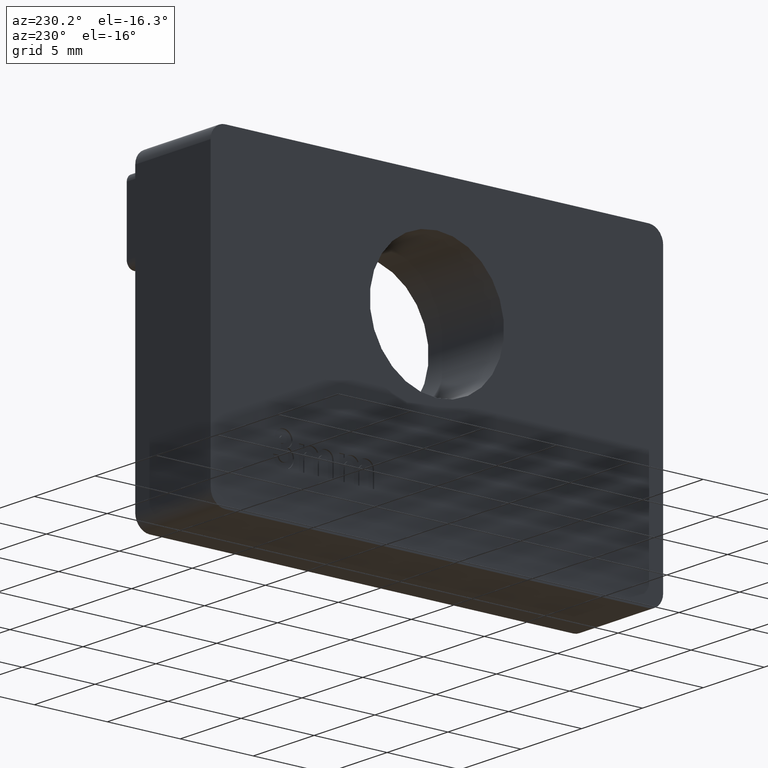
[diagram: clean part render]
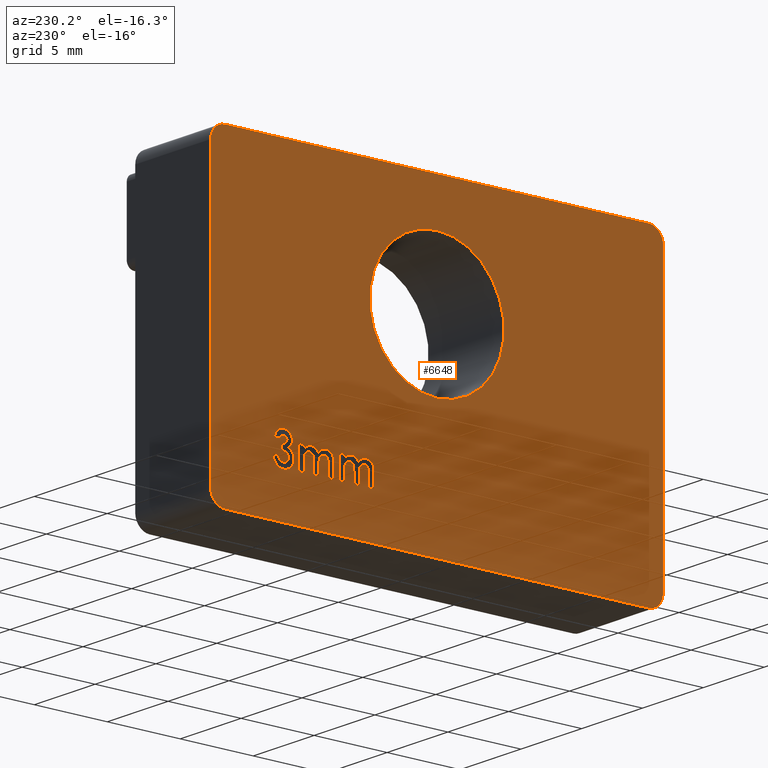
[diagram: same view with one face highlighted and labeled with its STEP entity id]
A machine part, auxiliary view. The second image highlights one B-rep face of the part: STEP entity #6648.
In plain terms, the highlighted planar face has unit normal (1, 0, 0).
Its self-contained STEP definition (entity closure, byte-faithful):
#28 = CARTESIAN_POINT ( 'NONE',  ( -3.100000000000000089, 10.84358974358974770, -6.898717948717951742 ) ) ;
#29 = ORIENTED_EDGE ( 'NONE', *, *, #10387, .T. ) ;
#31 = CARTESIAN_POINT ( 'NONE',  ( -3.100000000000000533, 10.30993552526666512, -7.174310654863732317 ) ) ;
#35 = LINE ( 'NONE', #15768, #10667 ) ;
#40 = AXIS2_PLACEMENT_3D ( 'NONE', #12797, #1090, #4297 ) ;
#63 = CARTESIAN_POINT ( 'NONE',  ( -3.100000000000000977, 11.01448290728293067, -7.415353809216736813 ) ) ;
#70 = CARTESIAN_POINT ( 'NONE',  ( -3.100000000000000089, 6.149814380282049520, -6.385176511599506277 ) ) ;
#77 = EDGE_CURVE ( 'NONE', #3204, #18690, #414, .T. ) ;
#175 = ORIENTED_EDGE ( 'NONE', *, *, #14725, .T. ) ;
#181 = CARTESIAN_POINT ( 'NONE',  ( -3.100000000000000089, 10.73504273504273954, -5.948931623931627222 ) ) ;
#187 = CARTESIAN_POINT ( 'NONE',  ( -3.099999999999999645, 6.024717830715786704, -6.004562837231190997 ) ) ;
#251 = CARTESIAN_POINT ( 'NONE',  ( -3.100000000000000533, 10.21798754674871468, -7.088067838076467453 ) ) ;
#255 = VERTEX_POINT ( 'NONE', #13379 ) ;
#277 = EDGE_CURVE ( 'NONE', #14707, #2455, #20581, .T. ) ;
#287 = CARTESIAN_POINT ( 'NONE',  ( -3.100000000000000089, 9.079700854700858415, -6.188074252136752662 ) ) ;
#291 = CARTESIAN_POINT ( 'NONE',  ( -3.100000000000000089, 6.107896815982126526, -6.360114820276868031 ) ) ;
#328 = VECTOR ( 'NONE', #8777, 1000.000000000000000 ) ;
#329 = VERTEX_POINT ( 'NONE', #17936 ) ;
#335 = ORIENTED_EDGE ( 'NONE', *, *, #15049, .T. ) ;
#340 = VERTEX_POINT ( 'NONE', #9677 ) ;
#344 = CARTESIAN_POINT ( 'NONE',  ( -3.100000000000000089, 6.311752136752139641, -7.550000000000000711 ) ) ;
#369 = CARTESIAN_POINT ( 'NONE',  ( -3.100000000000000533, 11.03855520573119087, -5.694146297895054332 ) ) ;
#380 = DIRECTION ( 'NONE',  ( 1.000000000000000000, 0.000000000000000000, 0.000000000000000000 ) ) ;
#414 = B_SPLINE_CURVE_WITH_KNOTS ( 'NONE', 3,
 ( #18813, #8740, #9331, #19542, #19692, #4458, #12882, #21333, #2737, #16437, #2661, #16366, #14515, #19770, #7769, #1180, #16293, #6160, #21409 ),
 .UNSPECIFIED., .F., .F.,
 ( 4, 1, 1, 1, 1, 1, 1, 1, 1, 1, 1, 1, 1, 1, 1, 1, 4 ),
 ( 0.000000000000000000, 0.1042839203160704081, 0.2001635621776655383, 0.2871839718809873765, 0.3661295336229596353, 0.4375263117621615572, 0.5010007315445073051, 0.5575333394719755864, 0.6079062600740848810, 0.6552202527542507760, 0.7014043566155696574, 0.7476592073928318705, 0.7943039443984514225, 0.8418724292380637131, 0.8922753010392938666, 0.9446362904059940613, 1.000000000000000000 ),
 .UNSPECIFIED. ) ;
#443 = EDGE_CURVE ( 'NONE', #6735, #15505, #12209, .T. ) ;
#496 = CARTESIAN_POINT ( 'NONE',  ( -3.099999999999998312, 8.916521317778709488, -6.057463930295276633 ) ) ;
#507 = LINE ( 'NONE', #13361, #13516 ) ;
#514 = ORIENTED_EDGE ( 'NONE', *, *, #18785, .F. ) ;
#517 = CARTESIAN_POINT ( 'NONE',  ( -3.100000000000000089, 10.95256076388889355, -5.575801282051284780 ) ) ;
#532 = CARTESIAN_POINT ( 'NONE',  ( -3.100000000000000977, 10.81542857839447258, -7.010149761276898595 ) ) ;
#533 = DIRECTION ( 'NONE',  ( 0.000000000000000000, 0.000000000000000000, 1.000000000000000000 ) ) ;
#559 = B_SPLINE_CURVE_WITH_KNOTS ( 'NONE', 3,
 ( #6338, #18177, #19881, #16621, #21598, #11447, #8252, #1143, #18754, #6909, #1659 ),
 .UNSPECIFIED., .F., .F.,
 ( 4, 1, 1, 1, 1, 1, 1, 1, 4 ),
 ( 0.000000000000000000, 0.1241007034540091425, 0.2443161303745110258, 0.3644659408319802507, 0.4858539930671589291, 0.6089147941772729000, 0.7343009187589538689, 0.8639428169458313045, 1.000000000000000000 ),
 .UNSPECIFIED. ) ;
#561 = DIRECTION ( 'NONE',  ( 0.000000000000000000, 1.000000000000000000, 0.000000000000000000 ) ) ;
#573 = CARTESIAN_POINT ( 'NONE',  ( -3.099999999999999201, 10.36669997892910899, -7.593188232366484769 ) ) ;
#616 = CARTESIAN_POINT ( 'NONE',  ( -3.100000000000000089, 4.893729031917177785, -6.334330184459838087 ) ) ;
#645 = CARTESIAN_POINT ( 'NONE',  ( -3.100000000000000089, 8.726637641259788580, -5.987935877765952597 ) ) ;
#665 = CARTESIAN_POINT ( 'NONE',  ( -3.100000000000000533, 10.27585927293416468, -5.917565202969631954 ) ) ;
#701 = CARTESIAN_POINT ( 'NONE',  ( -3.099999999999999645, 8.551005794093521573, -6.398680683164164051 ) ) ;
#733 = CARTESIAN_POINT ( 'NONE',  ( -3.100000000000000533, 7.074639325147892954, -6.523278829792079847 ) ) ;
#796 = VERTEX_POINT ( 'NONE', #19936 ) ;
#815 = CARTESIAN_POINT ( 'NONE',  ( -3.100000000000000089, 7.102289784906728798, -6.323481794920974508 ) ) ;
#825 = DIRECTION ( 'NONE',  ( 0.000000000000000000, 0.000000000000000000, -1.000000000000000000 ) ) ;
#914 = CARTESIAN_POINT ( 'NONE',  ( -3.100000000000000533, 4.721225290906701844, -6.478831953300519864 ) ) ;
#925 = CARTESIAN_POINT ( 'NONE',  ( -3.100000000000000089, 8.472970888037131942, -6.565169542709067940 ) ) ;
#932 = CARTESIAN_POINT ( 'NONE',  ( -3.100000000000000089, 10.51922075320513095, -7.604273504273507456 ) ) ;
#933 = CARTESIAN_POINT ( 'NONE',  ( -3.100000000000000089, 9.915641348371972086, -6.544812578222911625 ) ) ;
#960 = CARTESIAN_POINT ( 'NONE',  ( -3.100000000000000089, 10.21679294906220115, -6.753747425614077926 ) ) ;
#1090 = DIRECTION ( 'NONE',  ( 1.000000000000000000, 0.000000000000000000, 0.000000000000000000 ) ) ;
#1111 = CARTESIAN_POINT ( 'NONE',  ( -3.099999999999999645, 10.33329491256740695, -6.650796446821142460 ) ) ;
#1126 = CARTESIAN_POINT ( 'NONE',  ( -3.100000000000000089, 5.307692307692310152, -7.550000000000000711 ) ) ;
#1143 = CARTESIAN_POINT ( 'NONE',  ( -3.099999999999999201, 10.05495662376911348, -6.296546782009951215 ) ) ;
#1144 = EDGE_CURVE ( 'NONE', #12248, #18368, #5699, .T. ) ;
#1180 = CARTESIAN_POINT ( 'NONE',  ( -3.100000000000000089, 7.661677749865898335, -6.334330184459838087 ) ) ;
#1183 = VERTEX_POINT ( 'NONE', #16503 ) ;
#1189 = CARTESIAN_POINT ( 'NONE',  ( -3.100000000000000977, 10.20251698914310445, -5.442916536803723560 ) ) ;
#1191 = CARTESIAN_POINT ( 'NONE',  ( -3.099999999999998757, 10.51042761373743417, -6.587989700323433340 ) ) ;
#1250 = CARTESIAN_POINT ( 'NONE',  ( -3.100000000000000089, 9.079700854700858415, -7.550000000000000711 ) ) ;
#1261 = CARTESIAN_POINT ( 'NONE',  ( -3.100000000000000089, 9.079700854700858415, -6.869037126068376686 ) ) ;
#1266 = CARTESIAN_POINT ( 'NONE',  ( -3.100000000000000533, 10.56398855817952764, -6.580165403690434012 ) ) ;
#1301 = CARTESIAN_POINT ( 'NONE',  ( -3.100000000000000533, 5.925009416637643689, -6.330668234020858876 ) ) ;
#1304 = DIRECTION ( 'NONE',  ( 0.000000000000000000, -1.000000000000000000, 0.000000000000000000 ) ) ;
#1306 = VERTEX_POINT ( 'NONE', #10415 ) ;
#1342 = FACE_OUTER_BOUND ( 'NONE', #5768, .T. ) ;
#1350 = VERTEX_POINT ( 'NONE', #28 ) ;
#1378 = CARTESIAN_POINT ( 'NONE',  ( -3.100000000000000089, 5.967454594017096881, -6.328846153846155786 ) ) ;
#1408 = EDGE_CURVE ( 'NONE', #1306, #6042, #5398, .T. ) ;
#1424 = ORIENTED_EDGE ( 'NONE', *, *, #15832, .T. ) ;
#1478 = EDGE_LOOP ( 'NONE', ( #12482, #14739, #10084, #8348, #15134, #5192, #16357, #17545, #5599, #16551, #8747, #11791, #6579, #19075, #6279, #1424, #10075, #21915, #10433 ) ) ;
#1620 = CARTESIAN_POINT ( 'NONE',  ( -3.100000000000000977, 10.68280792350272002, -5.405233714954639446 ) ) ;
#1659 = CARTESIAN_POINT ( 'NONE',  ( -3.100000000000000089, 10.17704326923077396, -6.377607505341883254 ) ) ;
#1661 = CARTESIAN_POINT ( 'NONE',  ( -3.100000000000000089, 7.451495726495730665, -7.550000000000000711 ) ) ;
#1683 = CARTESIAN_POINT ( 'NONE',  ( -3.100000000000000089, 7.603715945512824703, -5.976068376068376153 ) ) ;
#1691 = EDGE_CURVE ( 'NONE', #9905, #796, #559, .T. ) ;
#1696 = EDGE_LOOP ( 'NONE', ( #21879, #29, #20247, #10486, #14918, #14404, #2888, #7569, #5137, #11772, #9185, #16342, #18164, #11576, #15550, #21015, #7553, #2864, #10689 ) ) ;
#1758 = LINE ( 'NONE', #1126, #8383 ) ;
#1822 = EDGE_CURVE ( 'NONE', #17777, #11832, #16232, .T. ) ;
#1866 = VECTOR ( 'NONE', #20724, 1000.000000000000000 ) ;
#1892 = CARTESIAN_POINT ( 'NONE',  ( -3.099999999999999645, 5.695576972127937232, -6.632696581041613193 ) ) ;
#1917 = CARTESIAN_POINT ( 'NONE',  ( -3.099999999999999645, 5.889593622407179652, -5.978053127629706864 ) ) ;
#1930 = CARTESIAN_POINT ( 'NONE',  ( -3.099999999999999201, 9.835873042365644636, -7.184673839353147962 ) ) ;
#1944 = CARTESIAN_POINT ( 'NONE',  ( -3.100000000000000533, 6.249451538439307008, -6.497462303842852727 ) ) ;
#1977 = CARTESIAN_POINT ( 'NONE',  ( -3.099999999999999645, 10.18865301124644240, -7.035028342721389549 ) ) ;
#2017 = CARTESIAN_POINT ( 'NONE',  ( -3.100000000000000533, 6.281568473132648656, -6.573804560259985053 ) ) ;
#2093 = CARTESIAN_POINT ( 'NONE',  ( -3.099999999999999201, 8.320423165449001957, -6.045084341523707216 ) ) ;
#2096 = CARTESIAN_POINT ( 'NONE',  ( -3.100000000000000089, 5.363237847222224630, -6.251676014957265437 ) ) ;
#2153 = CARTESIAN_POINT ( 'NONE',  ( -3.100000000000000089, 4.683547008547011892, -6.773210470085471613 ) ) ;
#2173 = CARTESIAN_POINT ( 'NONE',  ( -3.100000000000000089, 14.50000000000000178, -9.549999999999993605 ) ) ;
#2176 = EDGE_CURVE ( 'NONE', #16616, #4706, #17024, .T. ) ;
#2192 = B_SPLINE_CURVE_WITH_KNOTS ( 'NONE', 3,
 ( #17308, #15540, #17377, #10649, #20652, #8716, #17235, #10426, #7236, #5389, #181 ),
 .UNSPECIFIED., .F., .F.,
 ( 4, 1, 1, 1, 1, 1, 1, 1, 4 ),
 ( 0.000000000000000000, 0.1235549011213044890, 0.2451707667960305592, 0.3673616828424652869, 0.4937598178772997781, 0.6214265328211081574, 0.7459363928355848827, 0.8722197306102142944, 1.000000000000000000 ),
 .UNSPECIFIED. ) ;
#2251 = CARTESIAN_POINT ( 'NONE',  ( -3.100000000000000977, 10.56339738571021769, -7.221583351828382291 ) ) ;
#2270 = EDGE_CURVE ( 'NONE', #796, #3360, #4136, .T. ) ;
#2291 = CARTESIAN_POINT ( 'NONE',  ( -3.100000000000000089, 8.586575186965815121, -5.976068376068376153 ) ) ;
#2307 = CARTESIAN_POINT ( 'NONE',  ( -3.100000000000000089, 9.079700854700858415, -6.869037126068376686 ) ) ;
#2313 = CARTESIAN_POINT ( 'NONE',  ( -3.100000000000000977, 10.36367524196637646, -5.789461495269986102 ) ) ;
#2315 = CARTESIAN_POINT ( 'NONE',  ( -3.100000000000000089, 8.586575186965815121, -5.976068376068376153 ) ) ;
#2326 = CARTESIAN_POINT ( 'NONE',  ( -3.100000000000000089, 10.27414653062501593, -5.969059368321538273 ) ) ;
#2332 = CARTESIAN_POINT ( 'NONE',  ( -3.099999999999999645, 4.684469745993440348, -6.712551743893357070 ) ) ;
#2401 = EDGE_CURVE ( 'NONE', #17788, #9905, #10358, .T. ) ;
#2449 = CARTESIAN_POINT ( 'NONE',  ( -3.099999999999999201, 7.071726077902457774, -6.628053781631896513 ) ) ;
#2455 = VERTEX_POINT ( 'NONE', #7250 ) ;
#2479 = CARTESIAN_POINT ( 'NONE',  ( -3.099999999999999645, 4.790077033353897562, -6.380578517997818722 ) ) ;
#2517 = CARTESIAN_POINT ( 'NONE',  ( -3.100000000000000977, 8.115179068082833069, -6.230030880916853420 ) ) ;
#2565 = EDGE_CURVE ( 'NONE', #9956, #7652, #35, .T. ) ;
#2617 = CARTESIAN_POINT ( 'NONE',  ( -3.100000000000000977, 4.699610830179064003, -6.556640629770614126 ) ) ;
#2633 = CARTESIAN_POINT ( 'NONE',  ( -3.100000000000000089, 8.459204244402810602, -6.671644527921277046 ) ) ;
#2643 = CARTESIAN_POINT ( 'NONE',  ( -3.100000000000000533, 9.945552553055836853, -6.512868944119537318 ) ) ;
#2661 = CARTESIAN_POINT ( 'NONE',  ( -3.099999999999999645, 7.537391419602966991, -6.399390346585234646 ) ) ;
#2673 = CARTESIAN_POINT ( 'NONE',  ( -3.100000000000000089, 10.16517094017094358, -6.915254407051285135 ) ) ;
#2674 = CARTESIAN_POINT ( 'NONE',  ( -3.099999999999999645, 7.250130875755674609, -6.091038695159579852 ) ) ;
#2682 = VERTEX_POINT ( 'NONE', #5856 ) ;
#2727 = CARTESIAN_POINT ( 'NONE',  ( -3.100000000000000089, 4.317239053216494149, -6.413821782393131166 ) ) ;
#2737 = CARTESIAN_POINT ( 'NONE',  ( -3.100000000000000977, 7.502240419309539554, -6.447376479844718844 ) ) ;
#2765 = EDGE_CURVE ( 'NONE', #6521, #19584, #11458, .T. ) ;
#2810 = CARTESIAN_POINT ( 'NONE',  ( -3.100000000000000533, 4.679003154175828350, -5.993332266279659315 ) ) ;
#2822 = AXIS2_PLACEMENT_3D ( 'NONE', #5965, #17652, #9285 ) ;
#2850 = CARTESIAN_POINT ( 'NONE',  ( -3.100000000000000089, 8.075657982027019344, -6.841613575754744048 ) ) ;
#2864 = ORIENTED_EDGE ( 'NONE', *, *, #2176, .T. ) ;
#2888 = ORIENTED_EDGE ( 'NONE', *, *, #14802, .T. ) ;
#2897 = DIRECTION ( 'NONE',  ( 0.000000000000000000, 0.000000000000000000, -1.000000000000000000 ) ) ;
#2902 = EDGE_CURVE ( 'NONE', #4706, #9957, #21536, .T. ) ;
#2904 = CARTESIAN_POINT ( 'NONE',  ( -3.100000000000000089, 10.19761724200329311, -6.783243278896298634 ) ) ;
#2944 = CARTESIAN_POINT ( 'NONE',  ( -3.100000000000000089, 5.613522072582894040, -6.014048725584322241 ) ) ;
#2978 = ORIENTED_EDGE ( 'NONE', *, *, #2765, .F. ) ;
#2980 = CARTESIAN_POINT ( 'NONE',  ( -3.099999999999999645, 10.15296151791754653, -5.470597948284258827 ) ) ;
#3005 = VERTEX_POINT ( 'NONE', #21895 ) ;
#3023 = CARTESIAN_POINT ( 'NONE',  ( -3.100000000000000089, 5.953007628647956295, -6.329466330997222556 ) ) ;
#3026 = CARTESIAN_POINT ( 'NONE',  ( -3.100000000000000089, 9.459615384615387867, -6.003205128205128638 ) ) ;
#3042 = CARTESIAN_POINT ( 'NONE',  ( -3.099999999999999645, 4.808702095529323373, -5.976882890165620132 ) ) ;
#3055 = CARTESIAN_POINT ( 'NONE',  ( -3.100000000000000533, 9.989262693166947926, -5.628759000134938795 ) ) ;
#3141 = DIRECTION ( 'NONE',  ( 1.000000000000000000, 0.000000000000000000, 0.000000000000000000 ) ) ;
#3166 = ORIENTED_EDGE ( 'NONE', *, *, #6465, .T. ) ;
#3171 = EDGE_CURVE ( 'NONE', #11012, #1306, #7824, .T. ) ;
#3204 = VERTEX_POINT ( 'NONE', #19283 ) ;
#3215 = CARTESIAN_POINT ( 'NONE',  ( -3.100000000000000089, 10.54398305664103930, -7.603733464439973666 ) ) ;
#3261 = CARTESIAN_POINT ( 'NONE',  ( -3.100000000000000089, 4.835767227564105930, -5.976068376068377042 ) ) ;
#3270 = LINE ( 'NONE', #12930, #18636 ) ;
#3360 = VERTEX_POINT ( 'NONE', #15572 ) ;
#3386 = EDGE_CURVE ( 'NONE', #13915, #16616, #16785, .T. ) ;
#3426 = CARTESIAN_POINT ( 'NONE',  ( -3.100000000000000533, 10.59240246429721566, -7.602677488007162587 ) ) ;
#3432 = CARTESIAN_POINT ( 'NONE',  ( -3.100000000000000533, 8.263771917211821361, -6.084315864612883651 ) ) ;
#3471 = CARTESIAN_POINT ( 'NONE',  ( -3.100000000000000977, 10.25941925504257135, -7.135419420478130270 ) ) ;
#3601 = CARTESIAN_POINT ( 'NONE',  ( -3.100000000000001421, 5.689762987776921577, -6.714130307818158450 ) ) ;
#3634 = VERTEX_POINT ( 'NONE', #7780 ) ;
#3732 = CARTESIAN_POINT ( 'NONE',  ( -3.099999999999999645, 6.296721355647710183, -6.640142380843582437 ) ) ;
#3753 = CARTESIAN_POINT ( 'NONE',  ( -3.100000000000000089, 6.691666666666669983, -6.003205128205129526 ) ) ;
#3758 = B_SPLINE_CURVE_WITH_KNOTS ( 'NONE', 3,
 ( #12140, #18725, #5402, #20509, #17241, #10360, #187, #12070, #1917, #7094, #13772 ),
 .UNSPECIFIED., .F., .F.,
 ( 4, 1, 1, 1, 1, 1, 1, 1, 4 ),
 ( 0.000000000000000000, 0.1302006140787671518, 0.2563543078794576213, 0.3797895796382884659, 0.5012351473277708580, 0.6220881282210962704, 0.7446958809331576390, 0.8702135880917266642, 1.000000000000000000 ),
 .UNSPECIFIED. ) ;
#3791 = DIRECTION ( 'NONE',  ( 0.000000000000000000, 1.000000000000000000, 0.000000000000000000 ) ) ;
#3824 = CARTESIAN_POINT ( 'NONE',  ( -3.100000000000000089, 10.68076923076923457, -6.220299145299147625 ) ) ;
#3858 = CARTESIAN_POINT ( 'NONE',  ( -3.100000000000000089, 14.50000000000000178, -10.54999999999999361 ) ) ;
#3945 = CARTESIAN_POINT ( 'NONE',  ( -3.099999999999999645, 9.069730559364971967, -6.678878988760053481 ) ) ;
#3962 = CARTESIAN_POINT ( 'NONE',  ( -3.100000000000000533, 10.65558641975639631, -6.218152539211920349 ) ) ;
#3963 = CARTESIAN_POINT ( 'NONE',  ( -3.100000000000000089, 9.459615384615387867, -7.550000000000000711 ) ) ;
#3973 = CARTESIAN_POINT ( 'NONE',  ( -3.100000000000000089, 5.292553591724110440, -6.632845348251972695 ) ) ;
#4021 = CARTESIAN_POINT ( 'NONE',  ( -3.100000000000000533, 9.049517191081367429, -6.573804560259984164 ) ) ;
#4028 = CARTESIAN_POINT ( 'NONE',  ( -3.100000000000000977, 10.44285713910336177, -5.760638622332169057 ) ) ;
#4045 = VERTEX_POINT ( 'NONE', #932 ) ;
#4073 = DIRECTION ( 'NONE',  ( 1.000000000000000000, 0.000000000000000000, 0.000000000000000000 ) ) ;
#4121 = CARTESIAN_POINT ( 'NONE',  ( -3.100000000000000089, 5.305229583887789424, -6.758210868167548568 ) ) ;
#4136 = B_SPLINE_CURVE_WITH_KNOTS ( 'NONE', 3,
 ( #4142, #4215, #5850, #17678, #9237, #17607, #14278, #2643, #933, #14429, #21025, #21092, #5928, #7608, #21162, #11026, #12723, #4293, #7683 ),
 .UNSPECIFIED., .F., .F.,
 ( 4, 1, 1, 1, 1, 1, 1, 1, 1, 1, 1, 1, 1, 1, 1, 1, 4 ),
 ( 0.000000000000000000, 0.06622147296504674041, 0.1301222241928453871, 0.1929218896442601583, 0.2547641743082553201, 0.3157567810544742448, 0.3763028430934030610, 0.4368144190490097500, 0.4981681590965036377, 0.5595162284808271602, 0.6202430211536023030, 0.6809698138263763356, 0.7423490653749130752, 0.8045838965925344866, 0.8681023975450440355, 0.9333073801795233049, 1.000000000000000000 ),
 .UNSPECIFIED. ) ;
#4142 = CARTESIAN_POINT ( 'NONE',  ( -3.100000000000000089, 10.17704326923077396, -6.377607505341883254 ) ) ;
#4164 = CARTESIAN_POINT ( 'NONE',  ( -3.099999999999999645, 7.682103760011976590, -5.978321541185435350 ) ) ;
#4170 = CARTESIAN_POINT ( 'NONE',  ( -3.100000000000000089, 7.092337499248489330, -6.366137525198125147 ) ) ;
#4181 = VERTEX_POINT ( 'NONE', #18699 ) ;
#4192 = CARTESIAN_POINT ( 'NONE',  ( -3.099999999999999645, 4.837341939488981168, -6.351009633551841560 ) ) ;
#4211 = DIRECTION ( 'NONE',  ( 0.000000000000000000, 1.000000000000000000, 0.000000000000000000 ) ) ;
#4215 = CARTESIAN_POINT ( 'NONE',  ( -3.100000000000000089, 10.16195580153574518, -6.382561038653750352 ) ) ;
#4233 = LINE ( 'NONE', #7555, #10603 ) ;
#4293 = CARTESIAN_POINT ( 'NONE',  ( -3.100000000000000533, 9.785614827524703685, -6.903089298291289033 ) ) ;
#4297 = DIRECTION ( 'NONE',  ( 0.000000000000000000, 0.000000000000000000, -1.000000000000000000 ) ) ;
#4324 = VERTEX_POINT ( 'NONE', #18998 ) ;
#4361 = CARTESIAN_POINT ( 'NONE',  ( -3.100000000000000977, 8.503254156229147043, -6.468455330545314297 ) ) ;
#4382 = CARTESIAN_POINT ( 'NONE',  ( -3.100000000000000533, 8.515486433389556353, -5.978310818667951665 ) ) ;
#4388 = ORIENTED_EDGE ( 'NONE', *, *, #11619, .F. ) ;
#4407 = CARTESIAN_POINT ( 'NONE',  ( -3.100000000000000089, 7.071581196581199436, -7.550000000000000711 ) ) ;
#4424 = DIRECTION ( 'NONE',  ( 0.000000000000000000, 0.000000000000000000, -1.000000000000000000 ) ) ;
#4453 = CARTESIAN_POINT ( 'NONE',  ( -3.099999999999999645, 4.324388781299768780, -6.366137525198123370 ) ) ;
#4458 = CARTESIAN_POINT ( 'NONE',  ( -3.100000000000000089, 7.467559548127781888, -6.556640629770610573 ) ) ;
#4524 = CARTESIAN_POINT ( 'NONE',  ( -3.100000000000000533, 4.310565100018806994, -6.466086395533418241 ) ) ;
#4540 = CARTESIAN_POINT ( 'NONE',  ( -3.100000000000000089, 10.27371794871795352, -5.958259882478635916 ) ) ;
#4631 = EDGE_CURVE ( 'NONE', #1350, #18649, #12788, .T. ) ;
#4640 = CARTESIAN_POINT ( 'NONE',  ( -3.100000000000000089, 14.50000000000000178, 10.55000000000000782 ) ) ;
#4643 = CARTESIAN_POINT ( 'NONE',  ( -3.099999999999999645, 7.742425848268387867, -6.329434528536203253 ) ) ;
#4653 = ORIENTED_EDGE ( 'NONE', *, *, #2270, .T. ) ;
#4656 = ORIENTED_EDGE ( 'NONE', *, *, #9447, .T. ) ;
#4706 = VERTEX_POINT ( 'NONE', #11210 ) ;
#4742 = CARTESIAN_POINT ( 'NONE',  ( -3.100000000000000089, 8.446688444205424418, -5.991850113472326989 ) ) ;
#4748 = CARTESIAN_POINT ( 'NONE',  ( -3.100000000000000089, 4.990608411125934119, -5.991977973143119307 ) ) ;
#4820 = CARTESIAN_POINT ( 'NONE',  ( -3.100000000000000089, 5.363237847222224630, -6.251676014957265437 ) ) ;
#4924 = B_SPLINE_CURVE_WITH_KNOTS ( 'NONE', 3,
 ( #15771, #10808, #9244, #7255, #496, #12368, #14141, #645, #9174, #5637, #2291 ),
 .UNSPECIFIED., .F., .F.,
 ( 4, 1, 1, 1, 1, 1, 1, 1, 4 ),
 ( 0.000000000000000000, 0.1302006140787670962, 0.2563543078794597307, 0.3797895796382883549, 0.5012351473277721903, 0.6220881282210956043, 0.7446958809331577500, 0.8702135880917281074, 1.000000000000000000 ),
 .UNSPECIFIED. ) ;
#5030 = LINE ( 'NONE', #3963, #5280 ) ;
#5124 = CARTESIAN_POINT ( 'NONE',  ( -3.100000000000000089, 11.20484712751549949, -7.052597888827025763 ) ) ;
#5129 = CARTESIAN_POINT ( 'NONE',  ( -3.099999999999999645, 8.167848323001027921, -6.188015244188417974 ) ) ;
#5130 = EDGE_CURVE ( 'NONE', #3634, #17788, #6138, .T. ) ;
#5137 = ORIENTED_EDGE ( 'NONE', *, *, #7007, .T. ) ;
#5149 = CARTESIAN_POINT ( 'NONE',  ( -3.100000000000000089, 5.687617567010606834, -6.791863527400006539 ) ) ;
#5179 = CARTESIAN_POINT ( 'NONE',  ( -3.100000000000000089, 15.50000000000000355, 9.550000000000006040 ) ) ;
#5183 = CARTESIAN_POINT ( 'NONE',  ( -3.099999999999999645, 9.865434613210918968, -7.244228109154462913 ) ) ;
#5192 = ORIENTED_EDGE ( 'NONE', *, *, #11204, .T. ) ;
#5201 = CARTESIAN_POINT ( 'NONE',  ( -3.099999999999999645, 6.309284591803303144, -6.767116258207347634 ) ) ;
#5250 = VERTEX_POINT ( 'NONE', #8714 ) ;
#5258 = EDGE_CURVE ( 'NONE', #1183, #1350, #15378, .T. ) ;
#5280 = VECTOR ( 'NONE', #7362, 1000.000000000000000 ) ;
#5350 = CARTESIAN_POINT ( 'NONE',  ( -3.100000000000000533, 6.301781841416254970, -6.678878988760055258 ) ) ;
#5389 = CARTESIAN_POINT ( 'NONE',  ( -3.100000000000000089, 10.73040264151876677, -5.935449009133150433 ) ) ;
#5398 = B_SPLINE_CURVE_WITH_KNOTS ( 'NONE', 3,
 ( #13973, #12269, #14041, #15820, #20859, #8928, #17436, #10639, #10714, #7227, #17369, #15747, #3973, #12481, #15676, #4121, #9068, #17659, #20791 ),
 .UNSPECIFIED., .F., .F.,
 ( 4, 1, 1, 1, 1, 1, 1, 1, 1, 1, 1, 1, 1, 1, 1, 1, 4 ),
 ( 0.000000000000000000, 0.07061958908030432913, 0.1385768908401558974, 0.2060734598181208355, 0.2744631881640023363, 0.3426003686445655005, 0.4107400792371035392, 0.4801183847928304216, 0.5526004757567172243, 0.5917843457786856609, 0.6356630389305277795, 0.6835687881021346168, 0.7369646345616778227, 0.7948709303760274070, 0.8584208566785904715, 0.9265985076834627465, 1.000000000000000000 ),
 .UNSPECIFIED. ) ;
#5402 = CARTESIAN_POINT ( 'NONE',  ( -3.100000000000000089, 6.261571099131107765, -6.137455407747782310 ) ) ;
#5411 = CARTESIAN_POINT ( 'NONE',  ( -3.100000000000000089, 9.785256410256414128, -6.919070512820515440 ) ) ;
#5426 = CARTESIAN_POINT ( 'NONE',  ( -3.100000000000000089, 9.459615384615387867, -6.003205128205128638 ) ) ;
#5506 = CARTESIAN_POINT ( 'NONE',  ( -3.099999999999999645, 9.074795347057492023, -6.721095340195339496 ) ) ;
#5536 = CARTESIAN_POINT ( 'NONE',  ( -3.100000000000000089, 10.20148432825750540, -7.062256760893210306 ) ) ;
#5561 = CARTESIAN_POINT ( 'NONE',  ( -3.099999999999998757, 9.943535321916284531, -7.355344221536053162 ) ) ;
#5579 = CARTESIAN_POINT ( 'NONE',  ( -3.100000000000000533, 9.064670073596429845, -6.640142380843584213 ) ) ;
#5588 = CARTESIAN_POINT ( 'NONE',  ( -3.100000000000000977, 5.445336430821560825, -6.132321794343752686 ) ) ;
#5599 = ORIENTED_EDGE ( 'NONE', *, *, #20344, .T. ) ;
#5604 = B_SPLINE_CURVE_WITH_KNOTS ( 'NONE', 3,
 ( #10611, #5653, #14088, #20977, #17341, #5726, #369, #9191, #17409, #17631, #517 ),
 .UNSPECIFIED., .F., .F.,
 ( 4, 1, 1, 1, 1, 1, 1, 1, 4 ),
 ( 0.000000000000000000, 0.1389342360692894518, 0.2723713666678141965, 0.4007019795223971115, 0.5249153332245836134, 0.6467750113322138228, 0.7657064925031586977, 0.8831152256608806317, 1.000000000000000000 ),
 .UNSPECIFIED. ) ;
#5637 = CARTESIAN_POINT ( 'NONE',  ( -3.100000000000000089, 8.610493126933127073, -5.976737293538308293 ) ) ;
#5638 = VECTOR ( 'NONE', #12050, 1000.000000000000000 ) ;
#5653 = CARTESIAN_POINT ( 'NONE',  ( -3.099999999999999645, 11.11227492389298099, -5.929941051909343841 ) ) ;
#5668 = CARTESIAN_POINT ( 'NONE',  ( -3.099999999999999201, 10.62464853454717506, -7.206584283764502885 ) ) ;
#5673 = CARTESIAN_POINT ( 'NONE',  ( -3.100000000000000089, 10.44169223230559673, -6.177150442686313525 ) ) ;
#5689 = CARTESIAN_POINT ( 'NONE',  ( -3.100000000000000089, 8.131186565170942515, -6.251676014957265437 ) ) ;
#5694 = EDGE_CURVE ( 'NONE', #9957, #21798, #5030, .T. ) ;
#5699 = B_SPLINE_CURVE_WITH_KNOTS ( 'NONE', 3,
 ( #19763, #3042, #16574, #2810, #13169, #11473, #9622, #19988, #16431, #6151, #14796, #9838, #4453, #2727, #4524, #6297, #11326, #21404, #21479 ),
 .UNSPECIFIED., .F., .F.,
 ( 4, 1, 1, 1, 1, 1, 1, 1, 1, 1, 1, 1, 1, 1, 1, 1, 4 ),
 ( 0.000000000000000000, 0.08219813049781211911, 0.1609017353295908448, 0.2365790001076612525, 0.3117078894241333553, 0.3842873421925672162, 0.4538911213397826550, 0.5215311827780487741, 0.5892189861360550562, 0.6252810045250641879, 0.6651176715100981518, 0.7096227317038958926, 0.7583604347927995759, 0.8115982592529181749, 0.8697592135074199149, 0.9325402978054592174, 1.000000000000000000 ),
 .UNSPECIFIED. ) ;
#5725 = CARTESIAN_POINT ( 'NONE',  ( -3.100000000000000533, 9.057281926693272922, -6.605270538316657891 ) ) ;
#5726 = CARTESIAN_POINT ( 'NONE',  ( -3.100000000000000533, 11.06059276577984996, -5.739491349007559862 ) ) ;
#5768 = EDGE_LOOP ( 'NONE', ( #2978, #11534, #4388, #19779, #13720, #18369, #514, #16782 ) ) ;
#5822 = VECTOR ( 'NONE', #17250, 1000.000000000000000 ) ;
#5850 = CARTESIAN_POINT ( 'NONE',  ( -3.099999999999999645, 10.13230960422220939, -6.392294509434348626 ) ) ;
#5856 = CARTESIAN_POINT ( 'NONE',  ( -3.100000000000000089, -15.50000000000000000, 9.550000000000002487 ) ) ;
#5862 = EDGE_CURVE ( 'NONE', #10105, #8137, #507, .T. ) ;
#5869 = VECTOR ( 'NONE', #825, 1000.000000000000000 ) ;
#5906 = CARTESIAN_POINT ( 'NONE',  ( -3.100000000000000089, 4.946412896834671002, -6.328991981536133515 ) ) ;
#5928 = CARTESIAN_POINT ( 'NONE',  ( -3.100000000000000533, 9.825430951033007787, -6.694726714069145324 ) ) ;
#5960 = CARTESIAN_POINT ( 'NONE',  ( -3.100000000000000089, 0.000000000000000000, -1.749999999999993783 ) ) ;
#5965 = CARTESIAN_POINT ( 'NONE',  ( -3.100000000000000089, -14.49999999999999822, -9.550000000000000711 ) ) ;
#6042 = VERTEX_POINT ( 'NONE', #19109 ) ;
#6086 = EDGE_CURVE ( 'NONE', #2682, #3005, #11917, .T. ) ;
#6123 = CIRCLE ( 'NONE', #15502, 1.000000000000000888 ) ;
#6125 = VERTEX_POINT ( 'NONE', #21107 ) ;
#6136 = CARTESIAN_POINT ( 'NONE',  ( -3.100000000000000533, 8.455566284959328271, -6.791863527400005651 ) ) ;
#6138 = B_SPLINE_CURVE_WITH_KNOTS ( 'NONE', 3,
 ( #18420, #21977, #16926, #9986, #6802, #10051, #1620, #8497, #20351, #21910, #8289 ),
 .UNSPECIFIED., .F., .F.,
 ( 4, 1, 1, 1, 1, 1, 1, 1, 4 ),
 ( 0.000000000000000000, 0.1274068638107709317, 0.2511055387650977244, 0.3729077916389070824, 0.4944963015983283028, 0.6161714362084798058, 0.7405628981726808391, 0.8676048506052733700, 1.000000000000000000 ),
 .UNSPECIFIED. ) ;
#6151 = CARTESIAN_POINT ( 'NONE',  ( -3.100000000000000089, 4.362604172927147417, -6.241381932352943807 ) ) ;
#6160 = CARTESIAN_POINT ( 'NONE',  ( -3.100000000000000089, 7.714361614783389776, -6.328991981536132627 ) ) ;
#6177 = VERTEX_POINT ( 'NONE', #20895 ) ;
#6178 = CARTESIAN_POINT ( 'NONE',  ( -3.100000000000000089, 8.586575186965815121, -5.976068376068376153 ) ) ;
#6194 = CARTESIAN_POINT ( 'NONE',  ( -3.100000000000000089, 8.053837815502296493, -6.598505316459708503 ) ) ;
#6218 = EDGE_CURVE ( 'NONE', #13013, #7791, #4233, .T. ) ;
#6243 = CARTESIAN_POINT ( 'NONE',  ( -3.099999999999999201, 10.41465930006805074, -6.613519150674764369 ) ) ;
#6265 = CARTESIAN_POINT ( 'NONE',  ( -3.100000000000000533, 7.985748059442531854, -6.451201290756729989 ) ) ;
#6277 = CIRCLE ( 'NONE', #2822, 0.9999999999999991118 ) ;
#6279 = ORIENTED_EDGE ( 'NONE', *, *, #10518, .T. ) ;
#6297 = CARTESIAN_POINT ( 'NONE',  ( -3.100000000000000533, 4.306690607199175069, -6.523278829792079847 ) ) ;
#6314 = CARTESIAN_POINT ( 'NONE',  ( -3.100000000000000089, 10.16557339222364398, -6.903635596063894653 ) ) ;
#6338 = CARTESIAN_POINT ( 'NONE',  ( -3.100000000000000533, 9.893803418803424066, -5.934091212606841914 ) ) ;
#6395 = CARTESIAN_POINT ( 'NONE',  ( -3.100000000000000089, 10.51922075320513095, -7.604273504273507456 ) ) ;
#6401 = CARTESIAN_POINT ( 'NONE',  ( -3.100000000000000089, 14.50000000000000178, 10.55000000000000782 ) ) ;
#6417 = CARTESIAN_POINT ( 'NONE',  ( -3.100000000000000089, 5.794678505981006644, -5.976823797000430538 ) ) ;
#6443 = VECTOR ( 'NONE', #17243, 1000.000000000000000 ) ;
#6465 = EDGE_CURVE ( 'NONE', #6177, #20140, #21742, .T. ) ;
#6487 = CARTESIAN_POINT ( 'NONE',  ( -3.099999999999999645, 8.652267746672485771, -6.338557533860378790 ) ) ;
#6516 = CARTESIAN_POINT ( 'NONE',  ( -3.099999999999999645, 9.959689432085948368, -5.674786582593275064 ) ) ;
#6521 = VERTEX_POINT ( 'NONE', #19890 ) ;
#6579 = ORIENTED_EDGE ( 'NONE', *, *, #12171, .T. ) ;
#6628 = CARTESIAN_POINT ( 'NONE',  ( -3.100000000000000089, 5.747537715440836692, -5.978310818667950777 ) ) ;
#6648 = ADVANCED_FACE ( 'NONE', ( #12173, #15384, #1342, #16696, #17198 ), #10392, .F. ) ;
#6726 = DIRECTION ( 'NONE',  ( 0.000000000000000000, 0.000000000000000000, -1.000000000000000000 ) ) ;
#6735 = VERTEX_POINT ( 'NONE', #6178 ) ;
#6749 = EDGE_CURVE ( 'NONE', #12128, #11012, #7689, .T. ) ;
#6783 = CARTESIAN_POINT ( 'NONE',  ( -3.100000000000000089, 5.687606837606840493, -6.808403445512822394 ) ) ;
#6797 = CARTESIAN_POINT ( 'NONE',  ( -3.099999999999999645, 10.48669969505734301, -7.224157990067834767 ) ) ;
#6802 = CARTESIAN_POINT ( 'NONE',  ( -3.100000000000000533, 10.80059289166693581, -5.454665620237247659 ) ) ;
#6826 = CARTESIAN_POINT ( 'NONE',  ( -3.100000000000000533, 10.85481841482378762, -7.531164402163053495 ) ) ;
#6867 = DIRECTION ( 'NONE',  ( 1.000000000000000000, 0.000000000000000000, 0.000000000000000000 ) ) ;
#6909 = CARTESIAN_POINT ( 'NONE',  ( -3.099999999999999645, 10.15506220150015615, -6.365300834776100203 ) ) ;
#6959 = CARTESIAN_POINT ( 'NONE',  ( -3.100000000000000533, 9.785920739244698296, -6.942566733253293876 ) ) ;
#6967 = CARTESIAN_POINT ( 'NONE',  ( -3.100000000000000089, 11.18649786427651804, -7.123730301243325513 ) ) ;
#7007 = EDGE_CURVE ( 'NONE', #7791, #20486, #9797, .T. ) ;
#7094 = CARTESIAN_POINT ( 'NONE',  ( -3.100000000000000089, 5.842544408984408300, -5.976737293538308293 ) ) ;
#7152 = B_SPLINE_CURVE_WITH_KNOTS ( 'NONE', 3,
 ( #7312, #6136, #9381, #17968, #2633, #21230, #11088, #925, #12785, #9530, #4361, #16195, #701, #21460, #9610, #6487, #16349, #21676, #9897 ),
 .UNSPECIFIED., .F., .F.,
 ( 4, 1, 1, 1, 1, 1, 1, 1, 1, 1, 1, 1, 1, 1, 1, 1, 4 ),
 ( 0.000000000000000000, 0.07850500040760914622, 0.1510181914896385202, 0.2181978492071759979, 0.2802206865122359170, 0.3369791672433731788, 0.3880513996427323864, 0.4341184478425265114, 0.4746712092258827953, 0.5486837301114769749, 0.6172660510215106644, 0.6811869449214889016, 0.7430462531487299627, 0.8043830083113253648, 0.8670556951807939505, 0.9314012706582868173, 1.000000000000000000 ),
 .UNSPECIFIED. ) ;
#7218 = CARTESIAN_POINT ( 'NONE',  ( -3.100000000000000089, 10.40337420350101638, -6.157801849687401408 ) ) ;
#7227 = CARTESIAN_POINT ( 'NONE',  ( -3.099999999999998757, 5.265218133523171140, -6.532681294989245657 ) ) ;
#7236 = CARTESIAN_POINT ( 'NONE',  ( -3.099999999999999645, 10.72117681264933609, -5.908641726865962340 ) ) ;
#7250 = CARTESIAN_POINT ( 'NONE',  ( -3.100000000000000089, 5.363237847222224630, -6.251676014957265437 ) ) ;
#7255 = CARTESIAN_POINT ( 'NONE',  ( -3.100000000000000089, 8.974341451628054855, -6.094128474227500369 ) ) ;
#7280 = CARTESIAN_POINT ( 'NONE',  ( -3.099999999999999201, 5.399899605052308260, -6.188015244188417086 ) ) ;
#7312 = CARTESIAN_POINT ( 'NONE',  ( -3.100000000000000089, 8.455555555555559266, -6.808403445512820618 ) ) ;
#7330 = CARTESIAN_POINT ( 'NONE',  ( -3.099999999999999645, 10.04456500963426890, -7.452875695944012335 ) ) ;
#7361 = CARTESIAN_POINT ( 'NONE',  ( -3.100000000000000533, 10.34121452276660769, -6.111434697114852099 ) ) ;
#7362 = DIRECTION ( 'NONE',  ( 0.000000000000000000, 0.000000000000000000, 1.000000000000000000 ) ) ;
#7397 = CARTESIAN_POINT ( 'NONE',  ( -3.100000000000000089, 10.29532547874746484, -7.577546804500013167 ) ) ;
#7474 = VERTEX_POINT ( 'NONE', #13085 ) ;
#7479 = VERTEX_POINT ( 'NONE', #18183 ) ;
#7486 = CARTESIAN_POINT ( 'NONE',  ( -3.099999999999999645, 7.831978330622600737, -6.013908660439988729 ) ) ;
#7507 = LINE ( 'NONE', #3753, #328 ) ;
#7553 = ORIENTED_EDGE ( 'NONE', *, *, #3386, .T. ) ;
#7555 = CARTESIAN_POINT ( 'NONE',  ( -3.100000000000000089, 7.071581196581199436, -6.650247061965812279 ) ) ;
#7569 = ORIENTED_EDGE ( 'NONE', *, *, #6218, .T. ) ;
#7588 = CARTESIAN_POINT ( 'NONE',  ( -3.100000000000000089, 4.957458600427353090, -6.328846153846155786 ) ) ;
#7608 = CARTESIAN_POINT ( 'NONE',  ( -3.100000000000000977, 9.810431506076461972, -6.736318573399465492 ) ) ;
#7633 = CARTESIAN_POINT ( 'NONE',  ( -3.100000000000000533, 7.157813017473294792, -6.191729979681157126 ) ) ;
#7652 = VERTEX_POINT ( 'NONE', #17204 ) ;
#7683 = CARTESIAN_POINT ( 'NONE',  ( -3.100000000000000089, 9.785256410256414128, -6.919070512820515440 ) ) ;
#7689 = LINE ( 'NONE', #16530, #9282 ) ;
#7769 = CARTESIAN_POINT ( 'NONE',  ( -3.100000000000000089, 7.632531240736041944, -6.341330465980899334 ) ) ;
#7777 = CARTESIAN_POINT ( 'NONE',  ( -3.100000000000000533, 7.967788139062827568, -6.083991069472477697 ) ) ;
#7780 = CARTESIAN_POINT ( 'NONE',  ( -3.100000000000000089, 10.95256076388889355, -5.575801282051284780 ) ) ;
#7791 = VERTEX_POINT ( 'NONE', #4407 ) ;
#7824 = B_SPLINE_CURVE_WITH_KNOTS ( 'NONE', 3,
 ( #9368, #17589, #2332, #9214, #11073, #2617, #21073, #914, #12772, #10928, #17878, #2479, #14333, #4192, #16029, #616, #10782, #5906, #7588 ),
 .UNSPECIFIED., .F., .F.,
 ( 4, 1, 1, 1, 1, 1, 1, 1, 1, 1, 1, 1, 1, 1, 1, 1, 4 ),
 ( 0.000000000000000000, 0.1042839203160704220, 0.2001635621776655660, 0.2871839718809874320, 0.3661295336229596908, 0.4375263117621616127, 0.5010007315445060838, 0.5575333394719755864, 0.6079062600740859912, 0.6552202527542497767, 0.7014043566155696574, 0.7476592073928318705, 0.7943039443984514225, 0.8418724292380636021, 0.8922753010392941997, 0.9446362904059940613, 1.000000000000000000 ),
 .UNSPECIFIED. ) ;
#7866 = DIRECTION ( 'NONE',  ( 0.000000000000000000, 0.000000000000000000, 1.000000000000000000 ) ) ;
#7880 = CARTESIAN_POINT ( 'NONE',  ( -3.100000000000000533, 8.075641025641029813, -6.859284855769232081 ) ) ;
#7984 = CIRCLE ( 'NONE', #13945, 4.599999999999999645 ) ;
#7993 = EDGE_CURVE ( 'NONE', #5250, #6177, #2192, .T. ) ;
#8009 = CARTESIAN_POINT ( 'NONE',  ( -3.100000000000000533, 9.894233395875046355, -5.915543198979813511 ) ) ;
#8077 = VERTEX_POINT ( 'NONE', #6401 ) ;
#8091 = EDGE_LOOP ( 'NONE', ( #19961 ) ) ;
#8102 = CARTESIAN_POINT ( 'NONE',  ( -3.100000000000000089, 7.824485345035752104, -6.341622289249777999 ) ) ;
#8137 = VERTEX_POINT ( 'NONE', #287 ) ;
#8214 = CARTESIAN_POINT ( 'NONE',  ( -3.100000000000000089, 5.347230350134112520, -6.230030880916851643 ) ) ;
#8220 = CARTESIAN_POINT ( 'NONE',  ( -3.100000000000000089, 6.691666666666669983, -6.003205128205129526 ) ) ;
#8221 = CARTESIAN_POINT ( 'NONE',  ( -3.100000000000000533, 9.893803418803424066, -5.934091212606841914 ) ) ;
#8252 = CARTESIAN_POINT ( 'NONE',  ( -3.100000000000000977, 10.00551441189897517, -6.246800836307544458 ) ) ;
#8284 = EDGE_CURVE ( 'NONE', #15505, #14045, #8858, .T. ) ;
#8289 = CARTESIAN_POINT ( 'NONE',  ( -3.100000000000000089, 10.48487580128205643, -5.379059829059832154 ) ) ;
#8348 = ORIENTED_EDGE ( 'NONE', *, *, #10049, .T. ) ;
#8383 = VECTOR ( 'NONE', #18089, 1000.000000000000000 ) ;
#8386 = DIRECTION ( 'NONE',  ( 0.000000000000000000, -1.000000000000000000, -1.196361017915039486E-16 ) ) ;
#8419 = VERTEX_POINT ( 'NONE', #4540 ) ;
#8447 = VERTEX_POINT ( 'NONE', #8220 ) ;
#8480 = CARTESIAN_POINT ( 'NONE',  ( -3.099999999999999201, 5.735305438280424717, -6.468455330545312520 ) ) ;
#8491 = CARTESIAN_POINT ( 'NONE',  ( -3.100000000000000533, 10.36696648640734431, -7.202303686029148722 ) ) ;
#8497 = CARTESIAN_POINT ( 'NONE',  ( -3.099999999999998757, 10.61943262260414045, -5.390380923808050895 ) ) ;
#8516 = ORIENTED_EDGE ( 'NONE', *, *, #2401, .T. ) ;
#8596 = CARTESIAN_POINT ( 'NONE',  ( -3.099999999999999201, 10.91186150898631091, -7.498797807638578838 ) ) ;
#8603 = CARTESIAN_POINT ( 'NONE',  ( -3.100000000000000533, 8.875845533930846187, -6.360114820276868031 ) ) ;
#8671 = CARTESIAN_POINT ( 'NONE',  ( -3.100000000000000089, 10.96500145671802251, -7.459888270402500687 ) ) ;
#8701 = B_SPLINE_CURVE_WITH_KNOTS ( 'NONE', 3,
 ( #5411, #6959, #8813, #15630, #12076, #1930, #5183, #20816, #5561, #17398, #7330, #19389, #17464, #17687, #7397, #573, #15774, #19242, #15705 ),
 .UNSPECIFIED., .F., .F.,
 ( 4, 1, 1, 1, 1, 1, 1, 1, 1, 1, 1, 1, 1, 1, 1, 1, 4 ),
 ( 0.000000000000000000, 0.06282573561256669936, 0.1239321976711591777, 0.1835279292133099316, 0.2422443272975587092, 0.3012472195974578715, 0.3610332825702315396, 0.4219066046748971566, 0.4847516718083314524, 0.5479809981655229256, 0.6103845053602634518, 0.6725126003663611796, 0.7348095298313924717, 0.7979325408163987499, 0.8629635123615986281, 0.9300144884405369128, 1.000000000000000000 ),
 .UNSPECIFIED. ) ;
#8714 = CARTESIAN_POINT ( 'NONE',  ( -3.100000000000000089, 10.48741987179487545, -5.758974358974362495 ) ) ;
#8716 = CARTESIAN_POINT ( 'NONE',  ( -3.100000000000000089, 10.64115796569671168, -5.811341918917542593 ) ) ;
#8740 = CARTESIAN_POINT ( 'NONE',  ( -3.100000000000000089, 7.451811796372702190, -6.752432732930679471 ) ) ;
#8742 = LINE ( 'NONE', #20592, #5822 ) ;
#8747 = ORIENTED_EDGE ( 'NONE', *, *, #3171, .T. ) ;
#8777 = DIRECTION ( 'NONE',  ( 0.000000000000000000, -1.000000000000000000, 0.000000000000000000 ) ) ;
#8813 = CARTESIAN_POINT ( 'NONE',  ( -3.100000000000000977, 9.787231217358355551, -6.988916182357361784 ) ) ;
#8858 = B_SPLINE_CURVE_WITH_KNOTS ( 'NONE', 3,
 ( #17266, #2517, #14377, #17920, #7777, #14299, #7486, #9337, #4164, #19623, #16002 ),
 .UNSPECIFIED., .F., .F.,
 ( 4, 1, 1, 1, 1, 1, 1, 1, 4 ),
 ( 0.000000000000000000, 0.1301536311043222649, 0.2554550534493520986, 0.3791907456217717964, 0.5025114991143287968, 0.6253301890393347939, 0.7482688758519898675, 0.8725594309191605502, 1.000000000000000000 ),
 .UNSPECIFIED. ) ;
#8875 = CARTESIAN_POINT ( 'NONE',  ( -3.100000000000000089, 9.079700854700858415, -6.869037126068376686 ) ) ;
#8884 = VECTOR ( 'NONE', #4211, 1000.000000000000000 ) ;
#8916 = CARTESIAN_POINT ( 'NONE',  ( -3.100000000000000533, 10.52057672401912214, -7.223413192052848153 ) ) ;
#8928 = CARTESIAN_POINT ( 'NONE',  ( -3.100000000000000089, 5.145080648280919711, -6.384199600154933485 ) ) ;
#8954 = DIRECTION ( 'NONE',  ( -0.000000000000000000, 1.000000000000000000, 2.392722035830078972E-16 ) ) ;
#9046 = CARTESIAN_POINT ( 'NONE',  ( -3.100000000000000089, 10.27371794871795352, -5.958259882478635916 ) ) ;
#9068 = CARTESIAN_POINT ( 'NONE',  ( -3.099999999999999645, 5.307741970097297646, -6.807528646322318799 ) ) ;
#9111 = ORIENTED_EDGE ( 'NONE', *, *, #1691, .T. ) ;
#9138 = CARTESIAN_POINT ( 'NONE',  ( -3.100000000000000089, 10.31682710740374809, -6.083766862448436896 ) ) ;
#9174 = CARTESIAN_POINT ( 'NONE',  ( -3.100000000000000089, 8.657542340355901089, -5.978053127629706864 ) ) ;
#9185 = ORIENTED_EDGE ( 'NONE', *, *, #77, .T. ) ;
#9191 = CARTESIAN_POINT ( 'NONE',  ( -3.100000000000000089, 11.01349413772424413, -5.651493837387255859 ) ) ;
#9214 = CARTESIAN_POINT ( 'NONE',  ( -3.100000000000000977, 4.687051836850136155, -6.655351049324264245 ) ) ;
#9237 = CARTESIAN_POINT ( 'NONE',  ( -3.100000000000000533, 10.05010219633068047, -6.432414059380154647 ) ) ;
#9239 = CARTESIAN_POINT ( 'NONE',  ( -3.100000000000000533, 10.68076923076923634, -6.573076923076927258 ) ) ;
#9244 = CARTESIAN_POINT ( 'NONE',  ( -3.099999999999999201, 9.029519817079821209, -6.137455407747779645 ) ) ;
#9275 = EDGE_CURVE ( 'NONE', #329, #8447, #9758, .T. ) ;
#9282 = VECTOR ( 'NONE', #7866, 1000.000000000000000 ) ;
#9285 = DIRECTION ( 'NONE',  ( 0.000000000000000000, 0.000000000000000000, -1.000000000000000000 ) ) ;
#9331 = CARTESIAN_POINT ( 'NONE',  ( -3.100000000000000089, 7.452418463942160010, -6.712551743893357070 ) ) ;
#9337 = CARTESIAN_POINT ( 'NONE',  ( -3.100000000000000977, 7.758557129074656444, -5.991977973143119307 ) ) ;
#9352 = CARTESIAN_POINT ( 'NONE',  ( -3.100000000000000089, 6.311752136752139641, -6.869037126068377574 ) ) ;
#9368 = CARTESIAN_POINT ( 'NONE',  ( -3.100000000000000089, 4.683547008547011892, -6.773210470085471613 ) ) ;
#9381 = CARTESIAN_POINT ( 'NONE',  ( -3.100000000000000977, 8.455586924856708819, -6.760046082551717461 ) ) ;
#9394 = VERTEX_POINT ( 'NONE', #9798 ) ;
#9397 = CARTESIAN_POINT ( 'NONE',  ( -3.100000000000000089, 8.735403311965814765, -6.328846153846154898 ) ) ;
#9418 = CARTESIAN_POINT ( 'NONE',  ( -3.100000000000000089, 5.687606837606840493, -6.808403445512822394 ) ) ;
#9447 = EDGE_CURVE ( 'NONE', #4045, #1183, #11974, .T. ) ;
#9480 = VECTOR ( 'NONE', #1304, 1000.000000000000000 ) ;
#9530 = CARTESIAN_POINT ( 'NONE',  ( -3.099999999999998757, 8.488605585668704379, -6.504304874303272754 ) ) ;
#9543 = VECTOR ( 'NONE', #14296, 1000.000000000000000 ) ;
#9569 = CARTESIAN_POINT ( 'NONE',  ( -3.100000000000000089, 7.130552890875866190, -6.241381932352944695 ) ) ;
#9589 = CARTESIAN_POINT ( 'NONE',  ( -3.099999999999999201, 7.951817906013475934, -6.414848624955184597 ) ) ;
#9610 = CARTESIAN_POINT ( 'NONE',  ( -3.100000000000000089, 8.615267762657614625, -6.353350679861991424 ) ) ;
#9622 = CARTESIAN_POINT ( 'NONE',  ( -3.099999999999998757, 4.482182157806954059, -6.091038695159581629 ) ) ;
#9677 = CARTESIAN_POINT ( 'NONE',  ( -3.100000000000000089, 6.311752136752139641, -7.550000000000000711 ) ) ;
#9691 = B_SPLINE_CURVE_WITH_KNOTS ( 'NONE', 3,
 ( #13580, #12239, #15341, #10237, #291, #70, #18977, #20687, #1944, #15272, #2017, #17121, #3732, #5350, #10307, #5201, #16966, #18677, #15571 ),
 .UNSPECIFIED., .F., .F.,
 ( 4, 1, 1, 1, 1, 1, 1, 1, 1, 1, 1, 1, 1, 1, 1, 1, 4 ),
 ( 0.000000000000000000, 0.06745450333351644956, 0.1335942077651722515, 0.1992246179807913298, 0.2666613530954701772, 0.3348403665730926293, 0.4036044466687420673, 0.4738854191384402892, 0.5476974548649334862, 0.5880428884318575911, 0.6321817300589201993, 0.6817571641006153760, 0.7355461247618694243, 0.7938321459138741876, 0.8577445302903352609, 0.9262691873578736690, 1.000000000000000000 ),
 .UNSPECIFIED. ) ;
#9709 = CARTESIAN_POINT ( 'NONE',  ( -3.100000000000000089, 10.48487580128205643, -5.379059829059832154 ) ) ;
#9723 = CARTESIAN_POINT ( 'NONE',  ( -3.100000000000000089, 0.000000000000000000, 2.850000000000006306 ) ) ;
#9736 = CARTESIAN_POINT ( 'NONE',  ( -3.100000000000000089, 8.033166851471891690, -6.532681294989246545 ) ) ;
#9758 = LINE ( 'NONE', #12471, #13730 ) ;
#9797 = LINE ( 'NONE', #12078, #19870 ) ;
#9798 = CARTESIAN_POINT ( 'NONE',  ( -3.100000000000000089, 8.075641025641029813, -7.550000000000000711 ) ) ;
#9820 = CARTESIAN_POINT ( 'NONE',  ( -3.100000000000000089, 10.73504273504273954, -5.948931623931627222 ) ) ;
#9838 = CARTESIAN_POINT ( 'NONE',  ( -3.100000000000000533, 4.334341066958010025, -6.323481794920977173 ) ) ;
#9844 = EDGE_CURVE ( 'NONE', #255, #21157, #10413, .T. ) ;
#9855 = CARTESIAN_POINT ( 'NONE',  ( -3.100000000000001421, 10.06338275889789635, -5.542913146655004120 ) ) ;
#9897 = CARTESIAN_POINT ( 'NONE',  ( -3.100000000000000089, 8.735403311965814765, -6.328846153846154898 ) ) ;
#9905 = VERTEX_POINT ( 'NONE', #16803 ) ;
#9956 = VERTEX_POINT ( 'NONE', #21916 ) ;
#9957 = VERTEX_POINT ( 'NONE', #11485 ) ;
#9986 = CARTESIAN_POINT ( 'NONE',  ( -3.099999999999999201, 10.85458586205467313, -5.489125119741957270 ) ) ;
#10049 = EDGE_CURVE ( 'NONE', #7652, #14707, #3758, .T. ) ;
#10050 = CARTESIAN_POINT ( 'NONE',  ( -3.100000000000000977, 5.133706310105688786, -6.045298169083237028 ) ) ;
#10051 = CARTESIAN_POINT ( 'NONE',  ( -3.100000000000000977, 10.74303503088222733, -5.427345879883126223 ) ) ;
#10075 = ORIENTED_EDGE ( 'NONE', *, *, #12659, .T. ) ;
#10084 = ORIENTED_EDGE ( 'NONE', *, *, #2565, .T. ) ;
#10096 = EDGE_CURVE ( 'NONE', #340, #329, #19810, .T. ) ;
#10105 = VERTEX_POINT ( 'NONE', #10799 ) ;
#10161 = CARTESIAN_POINT ( 'NONE',  ( -3.100000000000000089, 8.131186565170942515, -6.251676014957265437 ) ) ;
#10183 = CARTESIAN_POINT ( 'NONE',  ( -3.099999999999999645, 5.783057076144803688, -6.398680683164165828 ) ) ;
#10228 = CARTESIAN_POINT ( 'NONE',  ( -3.100000000000000089, 11.05988636898829824, -7.366076976932570020 ) ) ;
#10237 = CARTESIAN_POINT ( 'NONE',  ( -3.100000000000000977, 6.063104220070243855, -6.342191955666264924 ) ) ;
#10238 = CARTESIAN_POINT ( 'NONE',  ( -3.100000000000000089, 8.735403311965814765, -6.328846153846154898 ) ) ;
#10307 = CARTESIAN_POINT ( 'NONE',  ( -3.099999999999999645, 6.306846629108772362, -6.721095340195342160 ) ) ;
#10315 = B_SPLINE_CURVE_WITH_KNOTS ( 'NONE', 3,
 ( #16542, #4643, #14693, #8102, #11510, #11365, #9589, #6265, #21443, #9736, #12920, #6194, #16472, #12995, #19952, #14912, #13211, #2850, #7880 ),
 .UNSPECIFIED., .F., .F.,
 ( 4, 1, 1, 1, 1, 1, 1, 1, 1, 1, 1, 1, 1, 1, 1, 1, 4 ),
 ( 0.000000000000000000, 0.07061958908030421811, 0.1385768908401559807, 0.2060734598181213073, 0.2744631881640021698, 0.3426003686445652785, 0.4107400792371040943, 0.4801183847928310322, 0.5526004757567172243, 0.5917843457786855499, 0.6356630389305276685, 0.6835687881021346168, 0.7369646345616777117, 0.7948709303760274070, 0.8584208566785905825, 0.9265985076834627465, 0.9999999999999998890 ),
 .UNSPECIFIED. ) ;
#10352 = EDGE_CURVE ( 'NONE', #11832, #13915, #7152, .T. ) ;
#10358 = B_SPLINE_CURVE_WITH_KNOTS ( 'NONE', 3,
 ( #9709, #11624, #16657, #21567, #16588, #18147, #1189, #2980, #18217, #9855, #19926, #3055, #6516, #14812, #14737, #11415, #18354, #8009, #8221 ),
 .UNSPECIFIED., .F., .F.,
 ( 4, 1, 1, 1, 1, 1, 1, 1, 1, 1, 1, 1, 1, 1, 1, 1, 4 ),
 ( 0.000000000000000000, 0.06821391069664303752, 0.1340948027129809372, 0.1982856151357168528, 0.2611601861891412746, 0.3236346542898934642, 0.3863667501562192408, 0.4496423858959018860, 0.5142449020307932050, 0.5784133384205240036, 0.6403746860373714656, 0.7006148497351879501, 0.7601039771708677506, 0.8192989800104280018, 0.8784659836354113960, 0.9383604016893765110, 0.9999999999999998890 ),
 .UNSPECIFIED. ) ;
#10360 = CARTESIAN_POINT ( 'NONE',  ( -3.100000000000000977, 6.088034290496723955, -6.027550170980986444 ) ) ;
#10377 = CARTESIAN_POINT ( 'NONE',  ( -3.100000000000000977, 11.13389436734332882, -7.253280361968021950 ) ) ;
#10387 = EDGE_CURVE ( 'NONE', #21798, #10105, #20336, .T. ) ;
#10392 = PLANE ( 'NONE',  #15987 ) ;
#10398 = CARTESIAN_POINT ( 'NONE',  ( -3.099999999999999645, 10.76877755360009736, -7.098780467231155633 ) ) ;
#10413 = B_SPLINE_CURVE_WITH_KNOTS ( 'NONE', 3,
 ( #2673, #6314, #17999, #16375, #21493, #2904, #960, #21420, #12967, #11273, #1111, #11418, #6243, #11343, #1191, #1266, #13047, #16518, #14742 ),
 .UNSPECIFIED., .F., .F.,
 ( 4, 1, 1, 1, 1, 1, 1, 1, 1, 1, 1, 1, 1, 1, 1, 1, 4 ),
 ( 0.000000000000000000, 0.05061342041271643666, 0.1007597227549725527, 0.1492748125078581511, 0.1988884379588269080, 0.2493064970530076974, 0.3023226859423763235, 0.3572206482518703319, 0.4154373215830227117, 0.4764429313671187383, 0.5398286479827852924, 0.6061838488371152911, 0.6759412007935891031, 0.7497824080738357821, 0.8282876884211429758, 0.9118449242474474525, 1.000000000000000000 ),
 .UNSPECIFIED. ) ;
#10415 = CARTESIAN_POINT ( 'NONE',  ( -3.100000000000000089, 4.957458600427353090, -6.328846153846155786 ) ) ;
#10425 = CARTESIAN_POINT ( 'NONE',  ( -3.100000000000000089, 15.50000000000000355, 9.550000000000006040 ) ) ;
#10426 = CARTESIAN_POINT ( 'NONE',  ( -3.100000000000000089, 10.69951174272705607, -5.872176759285061998 ) ) ;
#10433 = ORIENTED_EDGE ( 'NONE', *, *, #10096, .T. ) ;
#10475 = CARTESIAN_POINT ( 'NONE',  ( -3.099999999999999645, 10.84118226483035485, -6.912030145363226907 ) ) ;
#10486 = ORIENTED_EDGE ( 'NONE', *, *, #20023, .T. ) ;
#10518 = EDGE_CURVE ( 'NONE', #15929, #20788, #20596, .T. ) ;
#10603 = VECTOR ( 'NONE', #2897, 1000.000000000000000 ) ;
#10611 = CARTESIAN_POINT ( 'NONE',  ( -3.100000000000000089, 11.11495726495726721, -5.948931623931627222 ) ) ;
#10628 = CARTESIAN_POINT ( 'NONE',  ( -3.100000000000000089, 10.82734707891956027, -6.975498558675655936 ) ) ;
#10639 = CARTESIAN_POINT ( 'NONE',  ( -3.099999999999998757, 5.217799341493808640, -6.451201290756727325 ) ) ;
#10649 = CARTESIAN_POINT ( 'NONE',  ( -3.100000000000000533, 10.56843173828042914, -5.771049038678836673 ) ) ;
#10667 = VECTOR ( 'NONE', #17539, 1000.000000000000000 ) ;
#10689 = ORIENTED_EDGE ( 'NONE', *, *, #2902, .T. ) ;
#10709 = VERTEX_POINT ( 'NONE', #14685 ) ;
#10714 = CARTESIAN_POINT ( 'NONE',  ( -3.100000000000000977, 5.245820916332436745, -6.493467101065533598 ) ) ;
#10715 = EDGE_CURVE ( 'NONE', #17985, #15929, #1758, .T. ) ;
#10776 = CARTESIAN_POINT ( 'NONE',  ( -3.099999999999998757, 10.29791811249412881, -6.053854367151601856 ) ) ;
#10782 = CARTESIAN_POINT ( 'NONE',  ( -3.099999999999998757, 4.924920567237238700, -6.329275727768425064 ) ) ;
#10799 = CARTESIAN_POINT ( 'NONE',  ( -3.100000000000000089, 9.079700854700858415, -6.003205128205128638 ) ) ;
#10808 = CARTESIAN_POINT ( 'NONE',  ( -3.100000000000000089, 9.062798723742934826, -6.171024657760836973 ) ) ;
#10900 = CARTESIAN_POINT ( 'NONE',  ( -3.100000000000000089, 7.523671181399463670, -5.978477290560168633 ) ) ;
#10928 = CARTESIAN_POINT ( 'NONE',  ( -3.100000000000000089, 4.750949222562669938, -6.421391759770025409 ) ) ;
#10976 = CARTESIAN_POINT ( 'NONE',  ( -3.099999999999999645, 7.085187771165212034, -6.413821782393129389 ) ) ;
#11012 = VERTEX_POINT ( 'NONE', #2153 ) ;
#11026 = CARTESIAN_POINT ( 'NONE',  ( -3.100000000000000089, 9.790971276915071186, -6.824832447714873851 ) ) ;
#11052 = CARTESIAN_POINT ( 'NONE',  ( -3.100000000000000533, 7.446951872124547123, -5.993332266279657539 ) ) ;
#11073 = CARTESIAN_POINT ( 'NONE',  ( -3.099999999999999645, 4.692821721490083142, -6.603471584766734459 ) ) ;
#11088 = CARTESIAN_POINT ( 'NONE',  ( -3.099999999999999645, 8.467282721296047754, -6.597104043631254022 ) ) ;
#11204 = EDGE_CURVE ( 'NONE', #2455, #12248, #13240, .T. ) ;
#11210 = CARTESIAN_POINT ( 'NONE',  ( -3.100000000000000089, 9.079700854700858415, -7.550000000000000711 ) ) ;
#11260 = CARTESIAN_POINT ( 'NONE',  ( -3.100000000000000089, 10.49844417735043045, -7.224358974358977115 ) ) ;
#11273 = CARTESIAN_POINT ( 'NONE',  ( -3.099999999999999645, 10.29784868819558774, -6.673291145027290483 ) ) ;
#11283 = VERTEX_POINT ( 'NONE', #10425 ) ;
#11303 = CARTESIAN_POINT ( 'NONE',  ( -3.100000000000000089, 5.307692307692310152, -7.550000000000000711 ) ) ;
#11326 = CARTESIAN_POINT ( 'NONE',  ( -3.100000000000000089, 4.304057074459068488, -6.585206419554847201 ) ) ;
#11343 = CARTESIAN_POINT ( 'NONE',  ( -3.100000000000000977, 10.46054794962030421, -6.598765521729779593 ) ) ;
#11365 = CARTESIAN_POINT ( 'NONE',  ( -3.100000000000000533, 7.913029366229642037, -6.384199600154935261 ) ) ;
#11415 = CARTESIAN_POINT ( 'NONE',  ( -3.100000000000000977, 9.903590794685657173, -5.825166800017886892 ) ) ;
#11418 = CARTESIAN_POINT ( 'NONE',  ( -3.100000000000000533, 10.37189363840841061, -6.630037145522069686 ) ) ;
#11447 = CARTESIAN_POINT ( 'NONE',  ( -3.099999999999999645, 9.965218110787434469, -6.191249984134189255 ) ) ;
#11458 = CIRCLE ( 'NONE', #40, 0.9999999999999991118 ) ;
#11463 = ORIENTED_EDGE ( 'NONE', *, *, #11756, .T. ) ;
#11473 = CARTESIAN_POINT ( 'NONE',  ( -3.100000000000001421, 4.541446466564726947, -6.050654509279826954 ) ) ;
#11485 = CARTESIAN_POINT ( 'NONE',  ( -3.100000000000000089, 9.459615384615387867, -7.550000000000000711 ) ) ;
#11510 = CARTESIAN_POINT ( 'NONE',  ( -3.100000000000000089, 7.870278544960275902, -6.359660378008080706 ) ) ;
#11534 = ORIENTED_EDGE ( 'NONE', *, *, #15112, .F. ) ;
#11547 = CARTESIAN_POINT ( 'NONE',  ( -3.099999999999999645, 4.862113571099687448, -5.976825670586608297 ) ) ;
#11576 = ORIENTED_EDGE ( 'NONE', *, *, #13176, .T. ) ;
#11589 = EDGE_CURVE ( 'NONE', #7479, #8419, #21471, .T. ) ;
#11594 = DIRECTION ( 'NONE',  ( 0.000000000000000000, 1.000000000000000000, 0.000000000000000000 ) ) ;
#11612 = ORIENTED_EDGE ( 'NONE', *, *, #7993, .T. ) ;
#11616 = CARTESIAN_POINT ( 'NONE',  ( -3.100000000000000089, 5.315812125459641102, -6.187547556968862494 ) ) ;
#11619 = EDGE_CURVE ( 'NONE', #3005, #17193, #6277, .T. ) ;
#11624 = CARTESIAN_POINT ( 'NONE',  ( -3.099999999999999645, 10.46436084766505559, -5.379544146915482550 ) ) ;
#11737 = CARTESIAN_POINT ( 'NONE',  ( -3.100000000000000533, 5.678739726256706533, -5.991850113472329653 ) ) ;
#11756 = EDGE_CURVE ( 'NONE', #21157, #7479, #16069, .T. ) ;
#11772 = ORIENTED_EDGE ( 'NONE', *, *, #19962, .T. ) ;
#11791 = ORIENTED_EDGE ( 'NONE', *, *, #1408, .T. ) ;
#11797 = DIRECTION ( 'NONE',  ( 0.000000000000000000, 0.000000000000000000, -1.000000000000000000 ) ) ;
#11832 = VERTEX_POINT ( 'NONE', #12216 ) ;
#11904 = CARTESIAN_POINT ( 'NONE',  ( -3.099999999999999645, 10.28391542571920247, -7.155900723097280647 ) ) ;
#11917 = LINE ( 'NONE', #17337, #9543 ) ;
#11974 = B_SPLINE_CURVE_WITH_KNOTS ( 'NONE', 3,
 ( #6395, #3215, #3426, #20376, #18818, #15262, #6826, #8596, #8671, #63, #10228, #18670, #10377, #20526, #6967, #5124, #20306, #15335, #15188 ),
 .UNSPECIFIED., .F., .F.,
 ( 4, 1, 1, 1, 1, 1, 1, 1, 1, 1, 1, 1, 1, 1, 1, 1, 4 ),
 ( 0.000000000000000000, 0.06666834230006962736, 0.1303611213691727444, 0.1919629930551156882, 0.2520309476909480817, 0.3111653356755143540, 0.3694755622884366986, 0.4283311780217351483, 0.4881731602920021396, 0.5485262920650297858, 0.6084457083924625920, 0.6690288854944292929, 0.7308432651020820847, 0.7941675680994638720, 0.8598108564416804267, 0.9285234986036676741, 1.000000000000000000 ),
 .UNSPECIFIED. ) ;
#12023 = CARTESIAN_POINT ( 'NONE',  ( -3.100000000000000089, 8.955895507911565190, -6.416745532182648759 ) ) ;
#12044 = CARTESIAN_POINT ( 'NONE',  ( -3.100000000000000089, 5.705022170088414946, -6.565169542709071493 ) ) ;
#12050 = DIRECTION ( 'NONE',  ( 0.000000000000000000, 1.000000000000000000, 0.000000000000000000 ) ) ;
#12059 = CIRCLE ( 'NONE', #12065, 1.000000000000000888 ) ;
#12065 = AXIS2_PLACEMENT_3D ( 'NONE', #15841, #4073, #19239 ) ;
#12070 = CARTESIAN_POINT ( 'NONE',  ( -3.100000000000000977, 5.958688923311073360, -5.987935877765957926 ) ) ;
#12076 = CARTESIAN_POINT ( 'NONE',  ( -3.100000000000000977, 9.813301370506454901, -7.122186366461948914 ) ) ;
#12078 = CARTESIAN_POINT ( 'NONE',  ( -3.100000000000000089, 7.071581196581199436, -7.550000000000000711 ) ) ;
#12128 = VERTEX_POINT ( 'NONE', #18056 ) ;
#12140 = CARTESIAN_POINT ( 'NONE',  ( -3.100000000000000089, 6.311752136752139641, -6.188074252136753550 ) ) ;
#12167 = CARTESIAN_POINT ( 'NONE',  ( -3.100000000000000089, 8.455555555555559266, -7.550000000000000711 ) ) ;
#12171 = EDGE_CURVE ( 'NONE', #6042, #17985, #18439, .T. ) ;
#12173 = FACE_BOUND ( 'NONE', #1696, .T. ) ;
#12209 = B_SPLINE_CURVE_WITH_KNOTS ( 'NONE', 3,
 ( #2315, #16697, #4382, #4742, #13578, #2093, #3432, #15271, #5129, #18518, #10161 ),
 .UNSPECIFIED., .F., .F.,
 ( 4, 1, 1, 1, 1, 1, 1, 1, 4 ),
 ( 0.000000000000000000, 0.1279889591741102672, 0.2519421257995483332, 0.3733939417550196649, 0.4954489775448512323, 0.6170888868698825025, 0.7406333051793223543, 0.8669682307013166778, 1.000000000000000000 ),
 .UNSPECIFIED. ) ;
#12216 = CARTESIAN_POINT ( 'NONE',  ( -3.100000000000000089, 8.455555555555559266, -6.808403445512820618 ) ) ;
#12239 = CARTESIAN_POINT ( 'NONE',  ( -3.100000000000000533, 5.983777252550892101, -6.329405455317695051 ) ) ;
#12248 = VERTEX_POINT ( 'NONE', #18778 ) ;
#12253 = CARTESIAN_POINT ( 'NONE',  ( -3.100000000000000089, 10.84358974358974770, -6.898717948717951742 ) ) ;
#12257 = CARTESIAN_POINT ( 'NONE',  ( -3.100000000000000977, 10.28406906956751143, -6.022741929094225455 ) ) ;
#12269 = CARTESIAN_POINT ( 'NONE',  ( -3.100000000000000089, 4.974477130319669982, -6.329434528536205029 ) ) ;
#12326 = CARTESIAN_POINT ( 'NONE',  ( -3.100000000000000089, 10.49844417735043045, -7.224358974358977115 ) ) ;
#12345 = CARTESIAN_POINT ( 'NONE',  ( -3.100000000000000089, 10.16517094017094358, -6.915254407051285135 ) ) ;
#12368 = CARTESIAN_POINT ( 'NONE',  ( -3.100000000000000977, 8.855983008445441840, -6.027550170980985556 ) ) ;
#12382 = CARTESIAN_POINT ( 'NONE',  ( -3.100000000000000089, 5.818626469017096348, -5.976068376068377042 ) ) ;
#12387 = CARTESIAN_POINT ( 'NONE',  ( -3.100000000000000089, 10.27444338157629922, -5.944473433209452651 ) ) ;
#12395 = CARTESIAN_POINT ( 'NONE',  ( -3.100000000000000089, 10.67971043399652231, -7.180993969643395758 ) ) ;
#12400 = CARTESIAN_POINT ( 'NONE',  ( -3.100000000000000089, 5.687606837606840493, -7.550000000000000711 ) ) ;
#12459 = CARTESIAN_POINT ( 'NONE',  ( -3.099999999999999201, 10.28714682487295917, -5.879219817788270852 ) ) ;
#12471 = CARTESIAN_POINT ( 'NONE',  ( -3.100000000000000089, 6.691666666666669983, -7.550000000000000711 ) ) ;
#12473 = CARTESIAN_POINT ( 'NONE',  ( -3.100000000000000089, 10.27501147717680396, -5.990854450864829595 ) ) ;
#12481 = CARTESIAN_POINT ( 'NONE',  ( -3.100000000000000533, 5.297769939329656452, -6.670811116231107007 ) ) ;
#12482 = ORIENTED_EDGE ( 'NONE', *, *, #9275, .T. ) ;
#12659 = EDGE_CURVE ( 'NONE', #4324, #7474, #9691, .T. ) ;
#12723 = CARTESIAN_POINT ( 'NONE',  ( -3.099999999999999645, 9.786323667250789171, -6.871483344193258347 ) ) ;
#12772 = CARTESIAN_POINT ( 'NONE',  ( -3.099999999999999645, 4.734291701360819005, -6.447376479844718844 ) ) ;
#12785 = CARTESIAN_POINT ( 'NONE',  ( -3.100000000000000533, 8.479127521536124590, -6.536811801584001103 ) ) ;
#12788 = B_SPLINE_CURVE_WITH_KNOTS ( 'NONE', 3,
 ( #12253, #10475, #19054, #10628, #532, #20702, #20775, #10398, #15809, #17355, #12395, #5668, #2251, #8916, #12326 ),
 .UNSPECIFIED., .F., .F.,
 ( 4, 1, 1, 1, 1, 1, 1, 1, 1, 1, 1, 1, 4 ),
 ( 0.000000000000000000, 0.07734635258732151797, 0.1506523054421704810, 0.2206774854153150389, 0.2865751871342063772, 0.3501884696535647046, 0.4113788387158250903, 0.4699460385526053607, 0.5282337864665735960, 0.6421944316652343776, 0.7553643229127683378, 0.8735561215980445215, 1.000000000000000000 ),
 .UNSPECIFIED. ) ;
#12797 = CARTESIAN_POINT ( 'NONE',  ( -3.100000000000000089, 14.50000000000000178, -9.549999999999993605 ) ) ;
#12882 = CARTESIAN_POINT ( 'NONE',  ( -3.099999999999999645, 7.477186315162202668, -6.515059478353627753 ) ) ;
#12920 = CARTESIAN_POINT ( 'NONE',  ( -3.100000000000000089, 8.045287675670197203, -6.568138805877514308 ) ) ;
#12930 = CARTESIAN_POINT ( 'NONE',  ( -3.100000000000000089, 8.075641025641029813, -6.859284855769231193 ) ) ;
#12967 = CARTESIAN_POINT ( 'NONE',  ( -3.100000000000000089, 10.26728124615279825, -6.699096742689857997 ) ) ;
#12995 = CARTESIAN_POINT ( 'NONE',  ( -3.100000000000000089, 8.065718657278376114, -6.670811116231105231 ) ) ;
#13013 = VERTEX_POINT ( 'NONE', #18218 ) ;
#13043 = VECTOR ( 'NONE', #13765, 1000.000000000000000 ) ;
#13047 = CARTESIAN_POINT ( 'NONE',  ( -3.099999999999999645, 10.62114438131729344, -6.574341427472625732 ) ) ;
#13067 = CARTESIAN_POINT ( 'NONE',  ( -3.100000000000000089, 10.68076923076923457, -6.573076923076926370 ) ) ;
#13085 = CARTESIAN_POINT ( 'NONE',  ( -3.100000000000000089, 6.311752136752139641, -6.869037126068377574 ) ) ;
#13156 = CARTESIAN_POINT ( 'NONE',  ( -3.099999999999999645, 5.813170288254799978, -6.372826534807282783 ) ) ;
#13169 = CARTESIAN_POINT ( 'NONE',  ( -3.099999999999999201, 4.607076646747129800, -6.017047782658099031 ) ) ;
#13176 = EDGE_CURVE ( 'NONE', #9394, #17777, #13677, .T. ) ;
#13211 = CARTESIAN_POINT ( 'NONE',  ( -3.099999999999999645, 8.075690688046016419, -6.807528646322319688 ) ) ;
#13231 = VECTOR ( 'NONE', #18179, 1000.000000000000000 ) ;
#13240 = B_SPLINE_CURVE_WITH_KNOTS ( 'NONE', 3,
 ( #4820, #8214, #11616, #21698, #13403, #10050, #20062, #4748, #13258, #11547, #3261 ),
 .UNSPECIFIED., .F., .F.,
 ( 4, 1, 1, 1, 1, 1, 1, 1, 4 ),
 ( 0.000000000000000000, 0.1301536311043222094, 0.2554550534493502667, 0.3791907456217710193, 0.5025114991143275756, 0.6253301890393342388, 0.7482688758519895345, 0.8725594309191603282, 1.000000000000000000 ),
 .UNSPECIFIED. ) ;
#13244 = CARTESIAN_POINT ( 'NONE',  ( -3.100000000000000089, 5.307692307692310152, -6.859284855769232081 ) ) ;
#13258 = CARTESIAN_POINT ( 'NONE',  ( -3.099999999999999645, 4.914155042063258705, -5.978321541185436239 ) ) ;
#13361 = CARTESIAN_POINT ( 'NONE',  ( -3.100000000000000089, 9.079700854700858415, -6.003205128205128638 ) ) ;
#13379 = CARTESIAN_POINT ( 'NONE',  ( -3.100000000000000089, 10.16517094017094358, -6.915254407051285135 ) ) ;
#13403 = CARTESIAN_POINT ( 'NONE',  ( -3.100000000000000089, 5.199839421114108795, -6.083991069472476809 ) ) ;
#13516 = VECTOR ( 'NONE', #11797, 1000.000000000000000 ) ;
#13578 = CARTESIAN_POINT ( 'NONE',  ( -3.099999999999999645, 8.381470790531610149, -6.014048725584321353 ) ) ;
#13580 = CARTESIAN_POINT ( 'NONE',  ( -3.100000000000000089, 5.967454594017096881, -6.328846153846155786 ) ) ;
#13593 = DIRECTION ( 'NONE',  ( 0.000000000000000000, 0.000000000000000000, 1.000000000000000000 ) ) ;
#13622 = CARTESIAN_POINT ( 'NONE',  ( -3.100000000000000089, 4.303632478632480662, -6.650247061965813167 ) ) ;
#13642 = EDGE_CURVE ( 'NONE', #19584, #11283, #15776, .T. ) ;
#13677 = LINE ( 'NONE', #17752, #8884 ) ;
#13720 = ORIENTED_EDGE ( 'NONE', *, *, #13728, .F. ) ;
#13728 = EDGE_CURVE ( 'NONE', #10709, #2682, #12059, .T. ) ;
#13730 = VECTOR ( 'NONE', #533, 1000.000000000000000 ) ;
#13743 = CARTESIAN_POINT ( 'NONE',  ( -3.100000000000000089, 5.847319044708896740, -6.353350679861994088 ) ) ;
#13765 = DIRECTION ( 'NONE',  ( 0.000000000000000000, 0.000000000000000000, -1.000000000000000000 ) ) ;
#13772 = CARTESIAN_POINT ( 'NONE',  ( -3.100000000000000089, 5.818626469017096348, -5.976068376068377042 ) ) ;
#13787 = LINE ( 'NONE', #18107, #13231 ) ;
#13832 = CARTESIAN_POINT ( 'NONE',  ( -3.100000000000000089, 10.16562192106564666, -6.946810140860691263 ) ) ;
#13915 = VERTEX_POINT ( 'NONE', #9397 ) ;
#13942 = CARTESIAN_POINT ( 'NONE',  ( -3.099999999999998757, 9.036576800946798826, -6.537766957629330022 ) ) ;
#13944 = DIRECTION ( 'NONE',  ( 0.000000000000000000, 0.000000000000000000, 1.000000000000000000 ) ) ;
#13945 = AXIS2_PLACEMENT_3D ( 'NONE', #9723, #3141, #19940 ) ;
#13973 = CARTESIAN_POINT ( 'NONE',  ( -3.100000000000000089, 4.957458600427353090, -6.328846153846155786 ) ) ;
#14041 = CARTESIAN_POINT ( 'NONE',  ( -3.100000000000000089, 5.007872608682841786, -6.330589096783601377 ) ) ;
#14045 = VERTEX_POINT ( 'NONE', #1683 ) ;
#14088 = CARTESIAN_POINT ( 'NONE',  ( -3.100000000000000089, 11.10701637191746727, -5.892711293414591545 ) ) ;
#14141 = CARTESIAN_POINT ( 'NONE',  ( -3.100000000000000977, 8.792666548664508142, -6.004562837231196326 ) ) ;
#14166 = CARTESIAN_POINT ( 'NONE',  ( -3.099999999999998757, 10.40104290690431021, -5.771475421986466792 ) ) ;
#14179 = CARTESIAN_POINT ( 'NONE',  ( -3.100000000000000089, 10.27371794871795352, -5.958259882478635916 ) ) ;
#14240 = CARTESIAN_POINT ( 'NONE',  ( -3.100000000000000089, 10.47222921116986072, -5.759541677411364802 ) ) ;
#14278 = CARTESIAN_POINT ( 'NONE',  ( -3.099999999999998757, 9.977872025527743105, -6.483494054325144695 ) ) ;
#14296 = DIRECTION ( 'NONE',  ( 0.000000000000000000, 0.000000000000000000, -1.000000000000000000 ) ) ;
#14299 = CARTESIAN_POINT ( 'NONE',  ( -3.099999999999999645, 7.901655028054404895, -6.045298169083231699 ) ) ;
#14304 = CARTESIAN_POINT ( 'NONE',  ( -3.100000000000000089, 7.071581196581199436, -6.650247061965812279 ) ) ;
#14333 = CARTESIAN_POINT ( 'NONE',  ( -3.100000000000000533, 4.812609999158500074, -6.364337495186937588 ) ) ;
#14377 = CARTESIAN_POINT ( 'NONE',  ( -3.100000000000000089, 8.083760843408361652, -6.187547556968859830 ) ) ;
#14381 = CARTESIAN_POINT ( 'NONE',  ( -3.099999999999999645, 7.576650813478042146, -5.976882890165619244 ) ) ;
#14404 = ORIENTED_EDGE ( 'NONE', *, *, #8284, .T. ) ;
#14429 = CARTESIAN_POINT ( 'NONE',  ( -3.099999999999999645, 9.888626699710950874, -6.579500634497403411 ) ) ;
#14455 = CARTESIAN_POINT ( 'NONE',  ( -3.100000000000000089, 7.199675426657717203, -6.138548561253081459 ) ) ;
#14515 = CARTESIAN_POINT ( 'NONE',  ( -3.100000000000000533, 7.580558717107217959, -6.364337495186938476 ) ) ;
#14523 = CARTESIAN_POINT ( 'NONE',  ( -3.100000000000000089, 7.375025364695848573, -6.017047782658098143 ) ) ;
#14544 = ORIENTED_EDGE ( 'NONE', *, *, #11589, .T. ) ;
#14603 = ORIENTED_EDGE ( 'NONE', *, *, #5130, .T. ) ;
#14685 = CARTESIAN_POINT ( 'NONE',  ( -3.100000000000000089, -14.49999999999999822, 10.55000000000000426 ) ) ;
#14693 = CARTESIAN_POINT ( 'NONE',  ( -3.100000000000000533, 7.775821326631561448, -6.330589096783597824 ) ) ;
#14707 = VERTEX_POINT ( 'NONE', #12382 ) ;
#14725 = EDGE_CURVE ( 'NONE', #20140, #3634, #5604, .T. ) ;
#14737 = CARTESIAN_POINT ( 'NONE',  ( -3.099999999999999201, 9.916592021259926781, -5.773094866878951237 ) ) ;
#14739 = ORIENTED_EDGE ( 'NONE', *, *, #15964, .T. ) ;
#14742 = CARTESIAN_POINT ( 'NONE',  ( -3.100000000000000533, 10.68076923076923634, -6.573076923076927258 ) ) ;
#14796 = CARTESIAN_POINT ( 'NONE',  ( -3.100000000000000089, 4.344981729850547758, -6.285281316085076675 ) ) ;
#14802 = EDGE_CURVE ( 'NONE', #14045, #13013, #18472, .T. ) ;
#14812 = CARTESIAN_POINT ( 'NONE',  ( -3.100000000000000977, 9.935324976580124812, -5.722871416379764931 ) ) ;
#14824 = VERTEX_POINT ( 'NONE', #5960 ) ;
#14880 = CARTESIAN_POINT ( 'NONE',  ( -3.100000000000000089, 7.725407318376071863, -6.328846153846154898 ) ) ;
#14912 = CARTESIAN_POINT ( 'NONE',  ( -3.100000000000000089, 8.073178301836511750, -6.758210868167546792 ) ) ;
#14918 = ORIENTED_EDGE ( 'NONE', *, *, #443, .T. ) ;
#15022 = VECTOR ( 'NONE', #13593, 1000.000000000000000 ) ;
#15049 = EDGE_CURVE ( 'NONE', #3360, #4045, #8701, .T. ) ;
#15112 = EDGE_CURVE ( 'NONE', #17193, #6521, #20236, .T. ) ;
#15134 = ORIENTED_EDGE ( 'NONE', *, *, #277, .T. ) ;
#15188 = CARTESIAN_POINT ( 'NONE',  ( -3.100000000000000089, 11.22350427350427715, -6.898717948717951742 ) ) ;
#15262 = CARTESIAN_POINT ( 'NONE',  ( -3.100000000000000977, 10.79449490922292476, -7.557979770004275011 ) ) ;
#15271 = CARTESIAN_POINT ( 'NONE',  ( -3.100000000000000533, 8.213285148770278710, -6.132321794343748245 ) ) ;
#15272 = CARTESIAN_POINT ( 'NONE',  ( -3.099999999999999201, 6.268628082998083606, -6.537766957629330911 ) ) ;
#15283 = CARTESIAN_POINT ( 'NONE',  ( -3.100000000000000089, -14.49999999999999822, -10.55000000000000071 ) ) ;
#15335 = CARTESIAN_POINT ( 'NONE',  ( -3.100000000000000089, 11.22151787474597917, -6.925193000822226885 ) ) ;
#15341 = CARTESIAN_POINT ( 'NONE',  ( -3.099999999999999645, 6.016104414232926523, -6.330513156557782573 ) ) ;
#15347 = EDGE_CURVE ( 'NONE', #18649, #255, #18926, .T. ) ;
#15378 = LINE ( 'NONE', #15464, #1866 ) ;
#15384 = FACE_BOUND ( 'NONE', #8091, .T. ) ;
#15425 = CARTESIAN_POINT ( 'NONE',  ( -3.100000000000001421, 8.784053132181650625, -6.330513156557784349 ) ) ;
#15458 = CARTESIAN_POINT ( 'NONE',  ( -3.100000000000000533, 10.17075819483490662, -6.977399592024069896 ) ) ;
#15464 = CARTESIAN_POINT ( 'NONE',  ( -3.100000000000000089, 11.22350427350427715, -6.898717948717951742 ) ) ;
#15502 = AXIS2_PLACEMENT_3D ( 'NONE', #18638, #6867, #6726 ) ;
#15505 = VERTEX_POINT ( 'NONE', #5689 ) ;
#15510 = EDGE_CURVE ( 'NONE', #4181, #9394, #3270, .T. ) ;
#15540 = CARTESIAN_POINT ( 'NONE',  ( -3.100000000000000089, 10.50118619811573595, -5.759650411752362587 ) ) ;
#15550 = ORIENTED_EDGE ( 'NONE', *, *, #1822, .T. ) ;
#15571 = CARTESIAN_POINT ( 'NONE',  ( -3.100000000000000089, 6.311752136752139641, -6.869037126068377574 ) ) ;
#15572 = CARTESIAN_POINT ( 'NONE',  ( -3.100000000000000089, 9.785256410256414128, -6.919070512820515440 ) ) ;
#15579 = CARTESIAN_POINT ( 'NONE',  ( -3.100000000000000089, 10.48741987179487545, -5.758974358974362495 ) ) ;
#15630 = CARTESIAN_POINT ( 'NONE',  ( -3.100000000000000533, 9.797234228231028297, -7.056961992239261683 ) ) ;
#15676 = CARTESIAN_POINT ( 'NONE',  ( -3.099999999999999645, 5.302774415815230569, -6.712617244621807977 ) ) ;
#15705 = CARTESIAN_POINT ( 'NONE',  ( -3.100000000000000089, 10.51922075320513095, -7.604273504273507456 ) ) ;
#15747 = CARTESIAN_POINT ( 'NONE',  ( -3.099999999999999645, 5.285889097553577720, -6.598505316459708503 ) ) ;
#15768 = CARTESIAN_POINT ( 'NONE',  ( -3.100000000000000089, 6.311752136752139641, -6.003205128205129526 ) ) ;
#15771 = CARTESIAN_POINT ( 'NONE',  ( -3.100000000000000089, 9.079700854700858415, -6.188074252136752662 ) ) ;
#15774 = CARTESIAN_POINT ( 'NONE',  ( -3.100000000000000089, 10.44178986042476609, -7.602757961007318599 ) ) ;
#15776 = LINE ( 'NONE', #5179, #17083 ) ;
#15809 = CARTESIAN_POINT ( 'NONE',  ( -3.100000000000000533, 10.74901071363413507, -7.122888127283546034 ) ) ;
#15811 = CARTESIAN_POINT ( 'NONE',  ( -3.099999999999999645, 10.54307290155619903, -6.204776833181838924 ) ) ;
#15820 = CARTESIAN_POINT ( 'NONE',  ( -3.100000000000000089, 5.056536627087032443, -6.341622289249777111 ) ) ;
#15832 = EDGE_CURVE ( 'NONE', #20788, #4324, #20484, .T. ) ;
#15841 = CARTESIAN_POINT ( 'NONE',  ( -3.100000000000000089, -14.49999999999999822, 9.550000000000002487 ) ) ;
#15929 = VERTEX_POINT ( 'NONE', #12400 ) ;
#15938 = LINE ( 'NONE', #13622, #13043 ) ;
#15964 = EDGE_CURVE ( 'NONE', #8447, #9956, #7507, .T. ) ;
#15987 = AXIS2_PLACEMENT_3D ( 'NONE', #2173, #380, #19122 ) ;
#16002 = CARTESIAN_POINT ( 'NONE',  ( -3.100000000000000089, 7.603715945512824703, -5.976068376068376153 ) ) ;
#16029 = CARTESIAN_POINT ( 'NONE',  ( -3.100000000000000533, 4.864582522787325836, -6.341330465980899334 ) ) ;
#16069 = LINE ( 'NONE', #13067, #20838 ) ;
#16151 = CARTESIAN_POINT ( 'NONE',  ( -3.100000000000000977, 7.309395184513444832, -6.050654509279826065 ) ) ;
#16195 = CARTESIAN_POINT ( 'NONE',  ( -3.099999999999999645, 8.525429530246718457, -6.430878683535770080 ) ) ;
#16226 = EDGE_CURVE ( 'NONE', #8077, #10709, #18340, .T. ) ;
#16232 = LINE ( 'NONE', #12167, #18883 ) ;
#16234 = ORIENTED_EDGE ( 'NONE', *, *, #4631, .T. ) ;
#16255 = ORIENTED_EDGE ( 'NONE', *, *, #19625, .T. ) ;
#16293 = CARTESIAN_POINT ( 'NONE',  ( -3.100000000000000977, 7.692869285185958361, -6.329275727768428617 ) ) ;
#16342 = ORIENTED_EDGE ( 'NONE', *, *, #21561, .T. ) ;
#16349 = CARTESIAN_POINT ( 'NONE',  ( -3.099999999999999645, 8.692958134586360686, -6.330668234020854435 ) ) ;
#16357 = ORIENTED_EDGE ( 'NONE', *, *, #1144, .T. ) ;
#16366 = CARTESIAN_POINT ( 'NONE',  ( -3.100000000000000089, 7.558025751302617223, -6.380578517997818722 ) ) ;
#16375 = CARTESIAN_POINT ( 'NONE',  ( -3.100000000000000977, 10.17292038673594590, -6.846751264523084579 ) ) ;
#16431 = CARTESIAN_POINT ( 'NONE',  ( -3.100000000000000089, 4.389864299524574243, -6.191729979681155349 ) ) ;
#16437 = CARTESIAN_POINT ( 'NONE',  ( -3.100000000000000533, 7.518897940511391376, -6.421391759770027186 ) ) ;
#16461 = CARTESIAN_POINT ( 'NONE',  ( -3.100000000000000089, 4.303632478632480662, -6.650247061965813167 ) ) ;
#16472 = CARTESIAN_POINT ( 'NONE',  ( -3.100000000000000089, 8.060502309672829213, -6.632845348251972695 ) ) ;
#16503 = CARTESIAN_POINT ( 'NONE',  ( -3.100000000000000089, 11.22350427350427715, -6.898717948717951742 ) ) ;
#16518 = CARTESIAN_POINT ( 'NONE',  ( -3.100000000000000533, 10.66054263298739535, -6.573505882177709481 ) ) ;
#16530 = CARTESIAN_POINT ( 'NONE',  ( -3.100000000000000089, 4.683547008547011892, -7.550000000000000711 ) ) ;
#16542 = CARTESIAN_POINT ( 'NONE',  ( -3.100000000000000089, 7.725407318376071863, -6.328846153846154898 ) ) ;
#16551 = ORIENTED_EDGE ( 'NONE', *, *, #6749, .T. ) ;
#16574 = CARTESIAN_POINT ( 'NONE',  ( -3.100000000000000089, 4.755722463450744897, -5.978477290560168633 ) ) ;
#16588 = CARTESIAN_POINT ( 'NONE',  ( -3.100000000000000977, 10.30824890573966179, -5.401543395513401791 ) ) ;
#16616 = VERTEX_POINT ( 'NONE', #1261 ) ;
#16621 = CARTESIAN_POINT ( 'NONE',  ( -3.099999999999999645, 9.910676592690059294, -6.068467177241549493 ) ) ;
#16657 = CARTESIAN_POINT ( 'NONE',  ( -3.099999999999999645, 10.42403258280172906, -5.380496218225289340 ) ) ;
#16696 = FACE_BOUND ( 'NONE', #18182, .T. ) ;
#16697 = CARTESIAN_POINT ( 'NONE',  ( -3.100000000000000533, 8.562627223929727194, -5.976823797000430538 ) ) ;
#16710 = DIRECTION ( 'NONE',  ( 0.000000000000000000, 0.000000000000000000, -1.000000000000000000 ) ) ;
#16738 = EDGE_CURVE ( 'NONE', #18368, #6125, #15938, .T. ) ;
#16763 = CARTESIAN_POINT ( 'NONE',  ( -3.100000000000000089, 5.818626469017096348, -5.976068376068377042 ) ) ;
#16782 = ORIENTED_EDGE ( 'NONE', *, *, #13642, .F. ) ;
#16785 = B_SPLINE_CURVE_WITH_KNOTS ( 'NONE', 3,
 ( #10238, #20318, #15425, #18752, #8603, #20459, #12023, #20759, #19256, #13942, #4021, #5725, #5579, #3945, #5506, #20901, #17483, #20833, #2307 ),
 .UNSPECIFIED., .F., .F.,
 ( 4, 1, 1, 1, 1, 1, 1, 1, 1, 1, 1, 1, 1, 1, 1, 1, 4 ),
 ( 0.000000000000000000, 0.06745450333351633854, 0.1335942077651723903, 0.1992246179807925788, 0.2666613530954703437, 0.3348403665730927958, 0.4036044466687414012, 0.4738854191384402892, 0.5476974548649330421, 0.5880428884318574800, 0.6321817300589193112, 0.6817571641006153760, 0.7355461247618693132, 0.7938321459138740765, 0.8577445302903350388, 0.9262691873578736690, 0.9999999999999998890 ),
 .UNSPECIFIED. ) ;
#16803 = CARTESIAN_POINT ( 'NONE',  ( -3.100000000000000533, 9.893803418803424066, -5.934091212606841914 ) ) ;
#16926 = CARTESIAN_POINT ( 'NONE',  ( -3.100000000000000089, 10.90609679487187123, -5.528942805850722841 ) ) ;
#16966 = CARTESIAN_POINT ( 'NONE',  ( -3.100000000000000533, 6.311802549570929344, -6.816856874019461721 ) ) ;
#16987 = CARTESIAN_POINT ( 'NONE',  ( -3.099999999999999645, 5.687638206907988270, -6.760046082551715685 ) ) ;
#17024 = LINE ( 'NONE', #8875, #6443 ) ;
#17032 = CARTESIAN_POINT ( 'NONE',  ( -3.100000000000000089, 10.48487580128205643, -5.379059829059832154 ) ) ;
#17064 = CARTESIAN_POINT ( 'NONE',  ( -3.099999999999999645, 5.691255526454090052, -6.671644527921277046 ) ) ;
#17083 = VECTOR ( 'NONE', #18287, 1000.000000000000000 ) ;
#17121 = CARTESIAN_POINT ( 'NONE',  ( -3.100000000000000533, 6.289333208744553261, -6.605270538316659668 ) ) ;
#17140 = CARTESIAN_POINT ( 'NONE',  ( -3.100000000000001865, 5.720656867719991823, -6.504304874303279860 ) ) ;
#17193 = VERTEX_POINT ( 'NONE', #15283 ) ;
#17198 = FACE_BOUND ( 'NONE', #1478, .T. ) ;
#17204 = CARTESIAN_POINT ( 'NONE',  ( -3.100000000000000089, 6.311752136752139641, -6.188074252136753550 ) ) ;
#17231 = VECTOR ( 'NONE', #11594, 1000.000000000000000 ) ;
#17235 = CARTESIAN_POINT ( 'NONE',  ( -3.100000000000000533, 10.67289820096022801, -5.839315043070971711 ) ) ;
#17241 = CARTESIAN_POINT ( 'NONE',  ( -3.099999999999999645, 6.148572599829994267, -6.057463930295279297 ) ) ;
#17243 = DIRECTION ( 'NONE',  ( 0.000000000000000000, 0.000000000000000000, -1.000000000000000000 ) ) ;
#17250 = DIRECTION ( 'NONE',  ( 0.000000000000000000, 0.000000000000000000, 1.000000000000000000 ) ) ;
#17266 = CARTESIAN_POINT ( 'NONE',  ( -3.100000000000000089, 8.131186565170942515, -6.251676014957265437 ) ) ;
#17308 = CARTESIAN_POINT ( 'NONE',  ( -3.100000000000000089, 10.48741987179487545, -5.758974358974362495 ) ) ;
#17337 = CARTESIAN_POINT ( 'NONE',  ( -3.100000000000000089, -15.50000000000000000, 9.550000000000002487 ) ) ;
#17341 = CARTESIAN_POINT ( 'NONE',  ( -3.099999999999999201, 11.07938272055608131, -5.787684592861416455 ) ) ;
#17355 = CARTESIAN_POINT ( 'NONE',  ( -3.099999999999999201, 10.72048701944711091, -7.151547579224271090 ) ) ;
#17369 = CARTESIAN_POINT ( 'NONE',  ( -3.100000000000000977, 5.277338957721479318, -6.568138805877516084 ) ) ;
#17377 = CARTESIAN_POINT ( 'NONE',  ( -3.100000000000000089, 10.52850280595095001, -5.760991907528514311 ) ) ;
#17398 = CARTESIAN_POINT ( 'NONE',  ( -3.100000000000000533, 9.991485341933405095, -7.406321171107968837 ) ) ;
#17409 = CARTESIAN_POINT ( 'NONE',  ( -3.099999999999999645, 10.98513864221932224, -5.611717039898822534 ) ) ;
#17436 = CARTESIAN_POINT ( 'NONE',  ( -3.100000000000000089, 5.183869188064759825, -6.414848624955187262 ) ) ;
#17439 = CARTESIAN_POINT ( 'NONE',  ( -3.100000000000000533, 10.17757729462639027, -7.006995987472981469 ) ) ;
#17464 = CARTESIAN_POINT ( 'NONE',  ( -3.099999999999999645, 10.16297415841673590, -7.527810457994545956 ) ) ;
#17483 = CARTESIAN_POINT ( 'NONE',  ( -3.100000000000000089, 9.079751267519650781, -6.816856874019459944 ) ) ;
#17490 = CARTESIAN_POINT ( 'NONE',  ( -3.100000000000000533, 10.30590993434612024, -5.844647487142410114 ) ) ;
#17491 = CARTESIAN_POINT ( 'NONE',  ( -3.099999999999999645, 5.375666995029114048, -6.230093603850473727 ) ) ;
#17505 = CARTESIAN_POINT ( 'NONE',  ( -3.100000000000000089, 10.37028996276140980, -6.135926834817065689 ) ) ;
#17514 = LINE ( 'NONE', #9352, #5869 ) ;
#17539 = DIRECTION ( 'NONE',  ( 0.000000000000000000, 0.000000000000000000, -1.000000000000000000 ) ) ;
#17545 = ORIENTED_EDGE ( 'NONE', *, *, #16738, .T. ) ;
#17589 = CARTESIAN_POINT ( 'NONE',  ( -3.099999999999999645, 4.683863078423982529, -6.752432732930679471 ) ) ;
#17603 = ORIENTED_EDGE ( 'NONE', *, *, #9844, .T. ) ;
#17607 = CARTESIAN_POINT ( 'NONE',  ( -3.100000000000000089, 10.01279286714892258, -6.456751959766141802 ) ) ;
#17631 = CARTESIAN_POINT ( 'NONE',  ( -3.099999999999999645, 10.96340385457545885, -5.587755339202202798 ) ) ;
#17652 = DIRECTION ( 'NONE',  ( 1.000000000000000000, 0.000000000000000000, 0.000000000000000000 ) ) ;
#17659 = CARTESIAN_POINT ( 'NONE',  ( -3.100000000000000089, 5.307709264078298794, -6.841613575754744936 ) ) ;
#17678 = CARTESIAN_POINT ( 'NONE',  ( -3.100000000000000089, 10.09017109938212542, -6.411464470011466688 ) ) ;
#17687 = CARTESIAN_POINT ( 'NONE',  ( -3.100000000000000089, 10.22736685885474373, -7.555907886628378201 ) ) ;
#17752 = CARTESIAN_POINT ( 'NONE',  ( -3.100000000000000089, 8.075641025641029813, -7.550000000000000711 ) ) ;
#17777 = VERTEX_POINT ( 'NONE', #18739 ) ;
#17784 = ORIENTED_EDGE ( 'NONE', *, *, #5258, .T. ) ;
#17788 = VERTEX_POINT ( 'NONE', #17032 ) ;
#17878 = CARTESIAN_POINT ( 'NONE',  ( -3.100000000000000977, 4.769442701654250882, -6.399390346585238198 ) ) ;
#17920 = CARTESIAN_POINT ( 'NONE',  ( -3.099999999999999645, 8.028050334086458406, -6.132112452758197385 ) ) ;
#17936 = CARTESIAN_POINT ( 'NONE',  ( -3.100000000000000089, 6.691666666666669983, -7.550000000000000711 ) ) ;
#17968 = CARTESIAN_POINT ( 'NONE',  ( -3.100000000000000089, 8.457711705725637685, -6.714130307818154009 ) ) ;
#17985 = VERTEX_POINT ( 'NONE', #11303 ) ;
#17999 = CARTESIAN_POINT ( 'NONE',  ( -3.100000000000000533, 10.16637458204487388, -6.880505205659814827 ) ) ;
#18056 = CARTESIAN_POINT ( 'NONE',  ( -3.100000000000000089, 4.683547008547011892, -7.550000000000000711 ) ) ;
#18089 = DIRECTION ( 'NONE',  ( 0.000000000000000000, 1.000000000000000000, 0.000000000000000000 ) ) ;
#18107 = CARTESIAN_POINT ( 'NONE',  ( -3.100000000000000089, 4.303632478632480662, -7.550000000000000711 ) ) ;
#18147 = CARTESIAN_POINT ( 'NONE',  ( -3.099999999999998757, 10.25390141702550117, -5.419069433304167127 ) ) ;
#18164 = ORIENTED_EDGE ( 'NONE', *, *, #15510, .T. ) ;
#18177 = CARTESIAN_POINT ( 'NONE',  ( -3.100000000000000533, 9.894685757446239904, -5.957061382996391430 ) ) ;
#18179 = DIRECTION ( 'NONE',  ( 0.000000000000000000, 1.000000000000000000, 0.000000000000000000 ) ) ;
#18182 = EDGE_LOOP ( 'NONE', ( #11612, #3166, #175, #14603, #8516, #9111, #4653, #335, #4656, #17784, #16234, #18966, #17603, #11463, #14544, #16255 ) ) ;
#18183 = CARTESIAN_POINT ( 'NONE',  ( -3.100000000000000089, 10.68076923076923457, -6.220299145299147625 ) ) ;
#18188 = CARTESIAN_POINT ( 'NONE',  ( -3.100000000000000977, 5.552474447500288512, -6.045084341523713434 ) ) ;
#18209 = EDGE_CURVE ( 'NONE', #7474, #340, #17514, .T. ) ;
#18217 = CARTESIAN_POINT ( 'NONE',  ( -3.099999999999998757, 10.10661958492810264, -5.504550349795444220 ) ) ;
#18218 = CARTESIAN_POINT ( 'NONE',  ( -3.100000000000000089, 7.071581196581199436, -6.650247061965812279 ) ) ;
#18287 = DIRECTION ( 'NONE',  ( -0.000000000000000000, -0.000000000000000000, 1.000000000000000000 ) ) ;
#18325 = EDGE_CURVE ( 'NONE', #14824, #14824, #7984, .T. ) ;
#18340 = LINE ( 'NONE', #4640, #19146 ) ;
#18354 = CARTESIAN_POINT ( 'NONE',  ( -3.099999999999999201, 9.895081176228762487, -5.878972315108728530 ) ) ;
#18368 = VERTEX_POINT ( 'NONE', #16461 ) ;
#18369 = ORIENTED_EDGE ( 'NONE', *, *, #16226, .F. ) ;
#18420 = CARTESIAN_POINT ( 'NONE',  ( -3.100000000000000089, 10.95256076388889355, -5.575801282051284780 ) ) ;
#18439 = LINE ( 'NONE', #13244, #20046 ) ;
#18472 = B_SPLINE_CURVE_WITH_KNOTS ( 'NONE', 3,
 ( #21188, #14381, #10900, #11052, #14523, #16151, #2674, #14455, #7633, #9569, #21117, #815, #4170, #10976, #21265, #733, #19705, #2449, #14304 ),
 .UNSPECIFIED., .F., .F.,
 ( 4, 1, 1, 1, 1, 1, 1, 1, 1, 1, 1, 1, 1, 1, 1, 1, 4 ),
 ( 0.000000000000000000, 0.08219813049781211911, 0.1609017353295908448, 0.2365790001076612525, 0.3117078894241337439, 0.3842873421925666055, 0.4538911213397826550, 0.5215311827780495513, 0.5892189861360550562, 0.6252810045250641879, 0.6651176715100981518, 0.7096227317038958926, 0.7583604347927995759, 0.8115982592529190631, 0.8697592135074208031, 0.9325402978054592174, 1.000000000000000000 ),
 .UNSPECIFIED. ) ;
#18481 = CARTESIAN_POINT ( 'NONE',  ( -3.100000000000000089, 10.49844417735043045, -7.224358974358977115 ) ) ;
#18518 = CARTESIAN_POINT ( 'NONE',  ( -3.099999999999999201, 8.143615712977831933, -6.230093603850472839 ) ) ;
#18636 = VECTOR ( 'NONE', #4424, 1000.000000000000000 ) ;
#18638 = CARTESIAN_POINT ( 'NONE',  ( -3.100000000000000089, 14.50000000000000178, 9.550000000000006040 ) ) ;
#18649 = VERTEX_POINT ( 'NONE', #11260 ) ;
#18670 = CARTESIAN_POINT ( 'NONE',  ( -3.100000000000000089, 11.09945726111213737, -7.311656113277507529 ) ) ;
#18677 = CARTESIAN_POINT ( 'NONE',  ( -3.100000000000000533, 6.311769346076994580, -6.851224455997177110 ) ) ;
#18689 = CARTESIAN_POINT ( 'NONE',  ( -3.100000000000000089, 5.495823199263099923, -6.084315864612881875 ) ) ;
#18690 = VERTEX_POINT ( 'NONE', #14880 ) ;
#18693 = CARTESIAN_POINT ( 'NONE',  ( -3.100000000000000089, 5.687606837606840493, -7.550000000000000711 ) ) ;
#18698 = CARTESIAN_POINT ( 'NONE',  ( -3.100000000000000533, 5.699334003347328093, -6.597104043631254910 ) ) ;
#18699 = CARTESIAN_POINT ( 'NONE',  ( -3.100000000000000533, 8.075641025641029813, -6.859284855769232081 ) ) ;
#18725 = CARTESIAN_POINT ( 'NONE',  ( -3.100000000000000533, 6.294850005794215164, -6.171024657760838750 ) ) ;
#18739 = CARTESIAN_POINT ( 'NONE',  ( -3.100000000000000089, 8.455555555555559266, -7.550000000000000711 ) ) ;
#18752 = CARTESIAN_POINT ( 'NONE',  ( -3.099999999999998757, 8.831052938018958187, -6.342191955666260483 ) ) ;
#18754 = CARTESIAN_POINT ( 'NONE',  ( -3.100000000000000089, 10.11213650386612173, -6.341267770228799172 ) ) ;
#18778 = CARTESIAN_POINT ( 'NONE',  ( -3.100000000000000089, 4.835767227564105930, -5.976068376068377042 ) ) ;
#18785 = EDGE_CURVE ( 'NONE', #11283, #8077, #6123, .T. ) ;
#18813 = CARTESIAN_POINT ( 'NONE',  ( -3.100000000000000089, 7.451495726495730665, -6.773210470085470725 ) ) ;
#18818 = CARTESIAN_POINT ( 'NONE',  ( -3.099999999999999645, 10.73053954707529378, -7.578792839147210358 ) ) ;
#18861 = CARTESIAN_POINT ( 'NONE',  ( -3.100000000000000533, 10.16532276702836057, -6.925877934464602426 ) ) ;
#18883 = VECTOR ( 'NONE', #13944, 1000.000000000000000 ) ;
#18926 = B_SPLINE_CURVE_WITH_KNOTS ( 'NONE', 3,
 ( #18481, #6797, #20203, #21904, #21974, #8491, #20345, #31, #11904, #3471, #20719, #251, #5536, #1977, #17439, #15458, #13832, #18861, #12345 ),
 .UNSPECIFIED., .F., .F.,
 ( 4, 1, 1, 1, 1, 1, 1, 1, 1, 1, 1, 1, 1, 1, 1, 1, 4 ),
 ( 0.000000000000000000, 0.06938477227923948998, 0.1359092462060846884, 0.2009698328368430265, 0.2641142100625636924, 0.3266421505716137763, 0.3891254282603127668, 0.4514745255271042090, 0.5149056233695115115, 0.5775339387696415416, 0.6393772666410468819, 0.6987094200834063074, 0.7581179832849730404, 0.8170784405649671456, 0.8764458722703419857, 0.9372937263216604142, 1.000000000000000000 ),
 .UNSPECIFIED. ) ;
#18966 = ORIENTED_EDGE ( 'NONE', *, *, #15347, .T. ) ;
#18977 = CARTESIAN_POINT ( 'NONE',  ( -3.099999999999999645, 6.187946789962849081, -6.416745532182649647 ) ) ;
#18998 = CARTESIAN_POINT ( 'NONE',  ( -3.100000000000000089, 5.967454594017096881, -6.328846153846155786 ) ) ;
#19045 = CARTESIAN_POINT ( 'NONE',  ( -3.100000000000000089, 15.50000000000000355, -9.549999999999991829 ) ) ;
#19054 = CARTESIAN_POINT ( 'NONE',  ( -3.099999999999999645, 10.83649306859455130, -6.937959139401387532 ) ) ;
#19075 = ORIENTED_EDGE ( 'NONE', *, *, #10715, .T. ) ;
#19109 = CARTESIAN_POINT ( 'NONE',  ( -3.100000000000000089, 5.307692307692310152, -6.859284855769232081 ) ) ;
#19122 = DIRECTION ( 'NONE',  ( 0.000000000000000000, 0.000000000000000000, -1.000000000000000000 ) ) ;
#19146 = VECTOR ( 'NONE', #8386, 1000.000000000000000 ) ;
#19239 = DIRECTION ( 'NONE',  ( 0.000000000000000000, 0.000000000000000000, -1.000000000000000000 ) ) ;
#19242 = CARTESIAN_POINT ( 'NONE',  ( -3.099999999999999645, 10.49304459481260565, -7.603761162246158278 ) ) ;
#19256 = CARTESIAN_POINT ( 'NONE',  ( -3.100000000000000977, 9.017400256388027557, -6.497462303842850950 ) ) ;
#19277 = CARTESIAN_POINT ( 'NONE',  ( -3.100000000000000533, 10.60847436742855798, -6.214136664325784487 ) ) ;
#19283 = CARTESIAN_POINT ( 'NONE',  ( -3.100000000000000089, 7.451495726495730665, -6.773210470085470725 ) ) ;
#19389 = CARTESIAN_POINT ( 'NONE',  ( -3.100000000000000533, 10.10217504855082638, -7.493197156472710674 ) ) ;
#19542 = CARTESIAN_POINT ( 'NONE',  ( -3.099999999999999201, 7.455000554798849599, -6.655351049324259805 ) ) ;
#19584 = VERTEX_POINT ( 'NONE', #19045 ) ;
#19623 = CARTESIAN_POINT ( 'NONE',  ( -3.100000000000000089, 7.630062289048406221, -5.976825670586608297 ) ) ;
#19625 = EDGE_CURVE ( 'NONE', #8419, #5250, #21946, .T. ) ;
#19692 = CARTESIAN_POINT ( 'NONE',  ( -3.100000000000000089, 7.460770439438803692, -6.603471584766734459 ) ) ;
#19705 = CARTESIAN_POINT ( 'NONE',  ( -3.100000000000000533, 7.072005792407789926, -6.585206419554848978 ) ) ;
#19763 = CARTESIAN_POINT ( 'NONE',  ( -3.100000000000000089, 4.835767227564105930, -5.976068376068377042 ) ) ;
#19770 = CARTESIAN_POINT ( 'NONE',  ( -3.100000000000000089, 7.605290657437700830, -6.351009633551840672 ) ) ;
#19779 = ORIENTED_EDGE ( 'NONE', *, *, #6086, .F. ) ;
#19810 = LINE ( 'NONE', #344, #21928 ) ;
#19870 = VECTOR ( 'NONE', #3791, 1000.000000000000000 ) ;
#19881 = CARTESIAN_POINT ( 'NONE',  ( -3.100000000000000089, 9.896422810959178307, -6.002282586320980329 ) ) ;
#19890 = CARTESIAN_POINT ( 'NONE',  ( -3.100000000000000089, 14.50000000000000178, -10.54999999999999361 ) ) ;
#19926 = CARTESIAN_POINT ( 'NONE',  ( -3.100000000000000089, 10.02366148790676270, -5.584406266917459227 ) ) ;
#19936 = CARTESIAN_POINT ( 'NONE',  ( -3.100000000000000089, 10.17704326923077396, -6.377607505341883254 ) ) ;
#19940 = DIRECTION ( 'NONE',  ( 0.000000000000000000, 0.000000000000000000, -1.000000000000000000 ) ) ;
#19952 = CARTESIAN_POINT ( 'NONE',  ( -3.100000000000000089, 8.070723133763950230, -6.712617244621808865 ) ) ;
#19961 = ORIENTED_EDGE ( 'NONE', *, *, #18325, .T. ) ;
#19962 = EDGE_CURVE ( 'NONE', #20486, #3204, #8742, .T. ) ;
#19988 = CARTESIAN_POINT ( 'NONE',  ( -3.100000000000000977, 4.431726708709001095, -6.138548561253083236 ) ) ;
#20023 = EDGE_CURVE ( 'NONE', #8137, #6735, #4924, .T. ) ;
#20046 = VECTOR ( 'NONE', #16710, 1000.000000000000000 ) ;
#20055 = CARTESIAN_POINT ( 'NONE',  ( -3.100000000000000089, 11.11495726495726721, -5.948931623931627222 ) ) ;
#20062 = CARTESIAN_POINT ( 'NONE',  ( -3.099999999999999645, 5.064029612673881076, -6.013908660439989617 ) ) ;
#20140 = VERTEX_POINT ( 'NONE', #20055 ) ;
#20203 = CARTESIAN_POINT ( 'NONE',  ( -3.099999999999999645, 10.46369488170852513, -7.223764306805481539 ) ) ;
#20236 = LINE ( 'NONE', #3858, #20514 ) ;
#20247 = ORIENTED_EDGE ( 'NONE', *, *, #5862, .T. ) ;
#20306 = CARTESIAN_POINT ( 'NONE',  ( -3.100000000000000089, 11.21762188745993249, -6.977119365538653639 ) ) ;
#20318 = CARTESIAN_POINT ( 'NONE',  ( -3.100000000000000533, 8.751725970499611762, -6.329405455317693274 ) ) ;
#20336 = LINE ( 'NONE', #3026, #9480 ) ;
#20344 = EDGE_CURVE ( 'NONE', #6125, #12128, #13787, .T. ) ;
#20345 = CARTESIAN_POINT ( 'NONE',  ( -3.099999999999999645, 10.33743106540079459, -7.190249985533228028 ) ) ;
#20351 = CARTESIAN_POINT ( 'NONE',  ( -3.100000000000000089, 10.55316810265311211, -5.380525965754969775 ) ) ;
#20376 = CARTESIAN_POINT ( 'NONE',  ( -3.100000000000000089, 10.66322461452550563, -7.593533169120604498 ) ) ;
#20403 = CARTESIAN_POINT ( 'NONE',  ( -3.100000000000000089, 5.884319028723766110, -6.338557533860376125 ) ) ;
#20459 = CARTESIAN_POINT ( 'NONE',  ( -3.100000000000000089, 8.917763098230770069, -6.385176511599504501 ) ) ;
#20482 = CARTESIAN_POINT ( 'NONE',  ( -3.099999999999999201, 5.711178803587401376, -6.536811801584000214 ) ) ;
#20484 = B_SPLINE_CURVE_WITH_KNOTS ( 'NONE', 3,
 ( #6783, #5149, #16987, #3601, #17064, #1892, #18698, #12044, #20482, #17140, #8480, #21673, #10183, #13156, #13743, #20403, #1301, #3023, #1378 ),
 .UNSPECIFIED., .F., .F.,
 ( 4, 1, 1, 1, 1, 1, 1, 1, 1, 1, 1, 1, 1, 1, 1, 1, 4 ),
 ( 0.000000000000000000, 0.07850500040761043685, 0.1510181914896397137, 0.2181978492071770803, 0.2802206865122369162, 0.3369791672433739560, 0.3880513996427319423, 0.4341184478425270665, 0.4746712092258832949, 0.5486837301114778631, 0.6172660510215108864, 0.6811869449214906780, 0.7430462531487307398, 0.8043830083113255869, 0.8670556951807945056, 0.9314012706582870393, 1.000000000000000000 ),
 .UNSPECIFIED. ) ;
#20486 = VERTEX_POINT ( 'NONE', #1661 ) ;
#20509 = CARTESIAN_POINT ( 'NONE',  ( -3.100000000000000089, 6.206392733679336082, -6.094128474227502146 ) ) ;
#20514 = VECTOR ( 'NONE', #8954, 1000.000000000000000 ) ;
#20526 = CARTESIAN_POINT ( 'NONE',  ( -3.100000000000000533, 11.16342496760315228, -7.190824183720732066 ) ) ;
#20581 = B_SPLINE_CURVE_WITH_KNOTS ( 'NONE', 3,
 ( #16763, #6417, #6628, #11737, #2944, #18188, #18689, #5588, #7280, #17491, #2096 ),
 .UNSPECIFIED., .F., .F.,
 ( 4, 1, 1, 1, 1, 1, 1, 1, 4 ),
 ( 0.000000000000000000, 0.1279889591741104615, 0.2519421257995472230, 0.3733939417550202755, 0.4954489775448527311, 0.6170888868698845009, 0.7406333051793234645, 0.8669682307013176770, 1.000000000000000000 ),
 .UNSPECIFIED. ) ;
#20592 = CARTESIAN_POINT ( 'NONE',  ( -3.100000000000000089, 7.451495726495730665, -7.550000000000000711 ) ) ;
#20596 = LINE ( 'NONE', #18693, #15022 ) ;
#20652 = CARTESIAN_POINT ( 'NONE',  ( -3.100000000000000533, 10.60630724097810251, -5.787807825244595250 ) ) ;
#20687 = CARTESIAN_POINT ( 'NONE',  ( -3.100000000000000977, 6.222062024832342608, -6.453695488191828034 ) ) ;
#20702 = CARTESIAN_POINT ( 'NONE',  ( -3.099999999999999201, 10.80164782643466737, -7.042220726086073412 ) ) ;
#20719 = CARTESIAN_POINT ( 'NONE',  ( -3.099999999999999201, 10.23740657461667425, -7.112404773740238717 ) ) ;
#20724 = DIRECTION ( 'NONE',  ( 0.000000000000000000, -1.000000000000000000, 0.000000000000000000 ) ) ;
#20759 = CARTESIAN_POINT ( 'NONE',  ( -3.100000000000000533, 8.990010742781061381, -6.453695488191829810 ) ) ;
#20775 = CARTESIAN_POINT ( 'NONE',  ( -3.100000000000000533, 10.78676253962606069, -7.072132533704257540 ) ) ;
#20788 = VERTEX_POINT ( 'NONE', #9418 ) ;
#20791 = CARTESIAN_POINT ( 'NONE',  ( -3.100000000000000089, 5.307692307692310152, -6.859284855769232081 ) ) ;
#20816 = CARTESIAN_POINT ( 'NONE',  ( -3.100000000000001865, 9.901108561311604106, -7.301282408874834040 ) ) ;
#20833 = CARTESIAN_POINT ( 'NONE',  ( -3.100000000000000089, 9.079718064025712465, -6.851224455997175333 ) ) ;
#20838 = VECTOR ( 'NONE', #21437, 1000.000000000000000 ) ;
#20859 = CARTESIAN_POINT ( 'NONE',  ( -3.099999999999999645, 5.102329827011558017, -6.359660378008080706 ) ) ;
#20895 = CARTESIAN_POINT ( 'NONE',  ( -3.100000000000000089, 10.73504273504273954, -5.948931623931627222 ) ) ;
#20901 = CARTESIAN_POINT ( 'NONE',  ( -3.100000000000000533, 9.077233309752022805, -6.767116258207347634 ) ) ;
#20908 = CARTESIAN_POINT ( 'NONE',  ( -3.099999999999999645, 10.33200649161407902, -5.814744084485599984 ) ) ;
#20920 = CARTESIAN_POINT ( 'NONE',  ( -3.100000000000000533, 10.48790619435793126, -6.192136104232011995 ) ) ;
#20977 = CARTESIAN_POINT ( 'NONE',  ( -3.100000000000000089, 11.09443336029460703, -5.838811877556847385 ) ) ;
#21015 = ORIENTED_EDGE ( 'NONE', *, *, #10352, .T. ) ;
#21025 = CARTESIAN_POINT ( 'NONE',  ( -3.100000000000000533, 9.864650143521988213, -6.616378345022815743 ) ) ;
#21073 = CARTESIAN_POINT ( 'NONE',  ( -3.100000000000000089, 4.709237597213483895, -6.515059478353626865 ) ) ;
#21092 = CARTESIAN_POINT ( 'NONE',  ( -3.099999999999999201, 9.843137256349574926, -6.654593856527811546 ) ) ;
#21107 = CARTESIAN_POINT ( 'NONE',  ( -3.100000000000000089, 4.303632478632480662, -7.550000000000000711 ) ) ;
#21117 = CARTESIAN_POINT ( 'NONE',  ( -3.099999999999999645, 7.112930447799265643, -6.285281316085074899 ) ) ;
#21157 = VERTEX_POINT ( 'NONE', #9239 ) ;
#21162 = CARTESIAN_POINT ( 'NONE',  ( -3.099999999999999201, 9.799011782653423097, -6.779743240304778595 ) ) ;
#21188 = CARTESIAN_POINT ( 'NONE',  ( -3.100000000000000089, 7.603715945512824703, -5.976068376068376153 ) ) ;
#21230 = CARTESIAN_POINT ( 'NONE',  ( -3.100000000000000089, 8.463525690076656005, -6.632696581041612305 ) ) ;
#21265 = CARTESIAN_POINT ( 'NONE',  ( -3.099999999999999201, 7.078513817967524879, -6.466086395533415576 ) ) ;
#21333 = CARTESIAN_POINT ( 'NONE',  ( -3.100000000000000089, 7.489174008855420617, -6.478831953300515423 ) ) ;
#21404 = CARTESIAN_POINT ( 'NONE',  ( -3.099999999999999201, 4.303777359953739889, -6.628053781631896513 ) ) ;
#21409 = CARTESIAN_POINT ( 'NONE',  ( -3.100000000000000089, 7.725407318376071863, -6.328846153846154898 ) ) ;
#21420 = CARTESIAN_POINT ( 'NONE',  ( -3.099999999999999201, 10.23942006945695837, -6.725203357615711752 ) ) ;
#21437 = DIRECTION ( 'NONE',  ( 0.000000000000000000, 0.000000000000000000, 1.000000000000000000 ) ) ;
#21443 = CARTESIAN_POINT ( 'NONE',  ( -3.099999999999999201, 8.013769634281153742, -6.493467101065530933 ) ) ;
#21460 = CARTESIAN_POINT ( 'NONE',  ( -3.099999999999999645, 8.581119006203515198, -6.372826534807281895 ) ) ;
#21471 = B_SPLINE_CURVE_WITH_KNOTS ( 'NONE', 3,
 ( #3824, #3962, #19277, #15811, #20920, #5673, #7218, #17505, #7361, #9138, #10776, #12257, #12473, #2326, #14179 ),
 .UNSPECIFIED., .F., .F.,
 ( 4, 1, 1, 1, 1, 1, 1, 1, 1, 1, 1, 1, 4 ),
 ( 0.000000000000000000, 0.1416667152040715916, 0.2650303691833222897, 0.3699612466444972547, 0.4586536295735900715, 0.5366032148567245752, 0.6097761786242734683, 0.6805862705828101822, 0.7490802938634265606, 0.8156785637160804958, 0.8781026198463957044, 0.9395997226144596759, 0.9999999999999998890 ),
 .UNSPECIFIED. ) ;
#21479 = CARTESIAN_POINT ( 'NONE',  ( -3.100000000000000089, 4.303632478632480662, -6.650247061965813167 ) ) ;
#21493 = CARTESIAN_POINT ( 'NONE',  ( -3.099999999999999201, 10.18325759586275403, -6.814282693572152105 ) ) ;
#21536 = LINE ( 'NONE', #1250, #5638 ) ;
#21561 = EDGE_CURVE ( 'NONE', #18690, #4181, #10315, .T. ) ;
#21567 = CARTESIAN_POINT ( 'NONE',  ( -3.100000000000000089, 10.36476018076372618, -5.388138930043739450 ) ) ;
#21598 = CARTESIAN_POINT ( 'NONE',  ( -3.099999999999999201, 9.932987637082062449, -6.131751457277790252 ) ) ;
#21673 = CARTESIAN_POINT ( 'NONE',  ( -3.100000000000000533, 5.757480812298003237, -6.430878683535771856 ) ) ;
#21676 = CARTESIAN_POINT ( 'NONE',  ( -3.099999999999999201, 8.720956346596675957, -6.329466330997219892 ) ) ;
#21698 = CARTESIAN_POINT ( 'NONE',  ( -3.100000000000000977, 5.260101616137739633, -6.132112452758199161 ) ) ;
#21742 = LINE ( 'NONE', #9820, #17231 ) ;
#21798 = VERTEX_POINT ( 'NONE', #5426 ) ;
#21879 = ORIENTED_EDGE ( 'NONE', *, *, #5694, .T. ) ;
#21895 = CARTESIAN_POINT ( 'NONE',  ( -3.100000000000000089, -15.50000000000000000, -9.550000000000000711 ) ) ;
#21904 = CARTESIAN_POINT ( 'NONE',  ( -3.100000000000000089, 10.42990713867584240, -7.219386121853300864 ) ) ;
#21910 = CARTESIAN_POINT ( 'NONE',  ( -3.100000000000000533, 10.50795090399331144, -5.379555218059029364 ) ) ;
#21915 = ORIENTED_EDGE ( 'NONE', *, *, #18209, .T. ) ;
#21916 = CARTESIAN_POINT ( 'NONE',  ( -3.100000000000000089, 6.311752136752139641, -6.003205128205129526 ) ) ;
#21928 = VECTOR ( 'NONE', #561, 1000.000000000000000 ) ;
#21946 = B_SPLINE_CURVE_WITH_KNOTS ( 'NONE', 3,
 ( #9046, #12387, #665, #12459, #17490, #20908, #2313, #14166, #4028, #14240, #15579 ),
 .UNSPECIFIED., .F., .F.,
 ( 4, 1, 1, 1, 1, 1, 1, 1, 4 ),
 ( 0.000000000000000000, 0.1261402264439204224, 0.2461990168304744042, 0.3626638371197831168, 0.4838692804749641363, 0.6074311080036719490, 0.7313587644312723457, 0.8610640124343217350, 1.000000000000000000 ),
 .UNSPECIFIED. ) ;
#21974 = CARTESIAN_POINT ( 'NONE',  ( -3.099999999999999201, 10.39770845788757470, -7.212206009258940398 ) ) ;
#21977 = CARTESIAN_POINT ( 'NONE',  ( -3.100000000000000089, 10.93692104235698537, -5.560028769829657769 ) ) ;